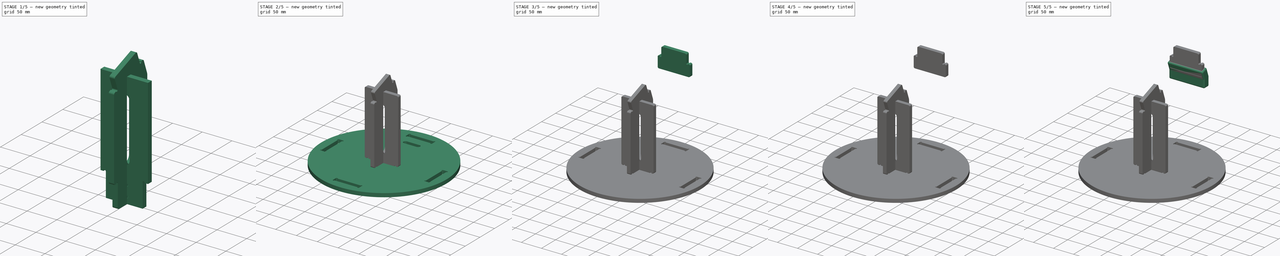
[diagram: build sequence overview — one tinted view per stage of 5, left to right]
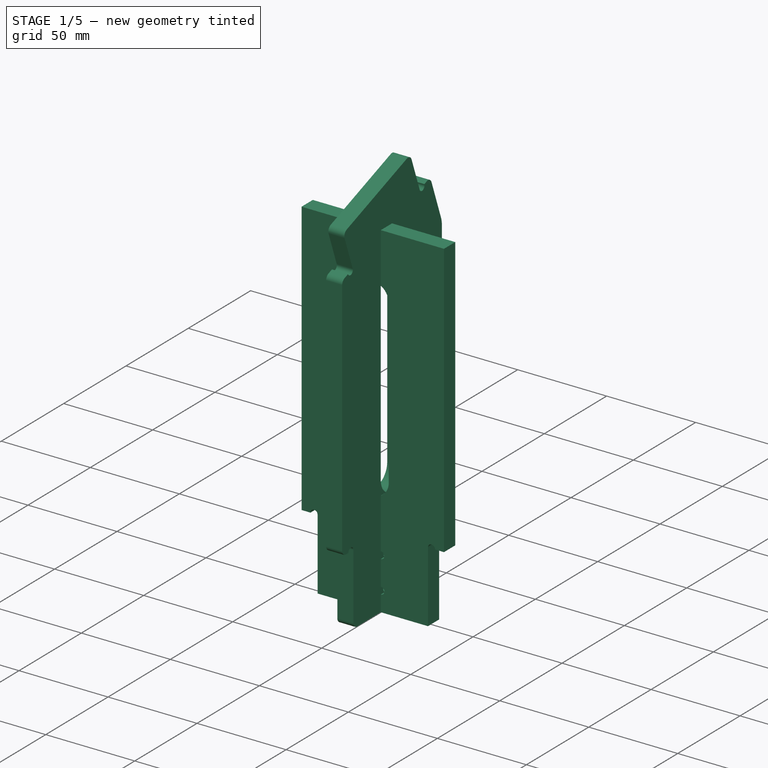
[diagram: stage 1 of 5 — iso view after this stage's code; geometry added in this stage tinted green]
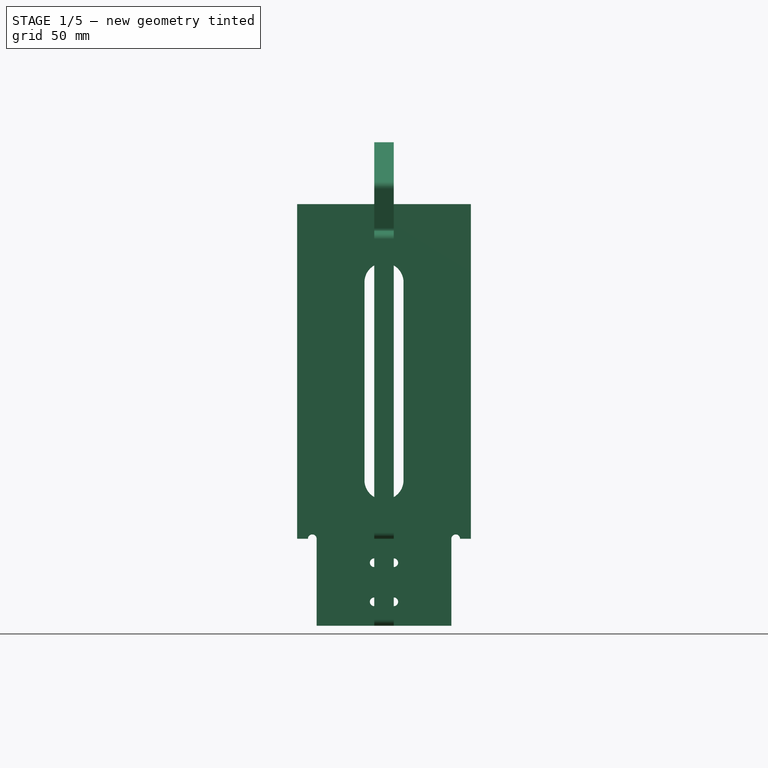
[diagram: stage 1 of 5 — front view after this stage's code; geometry added in this stage tinted green]
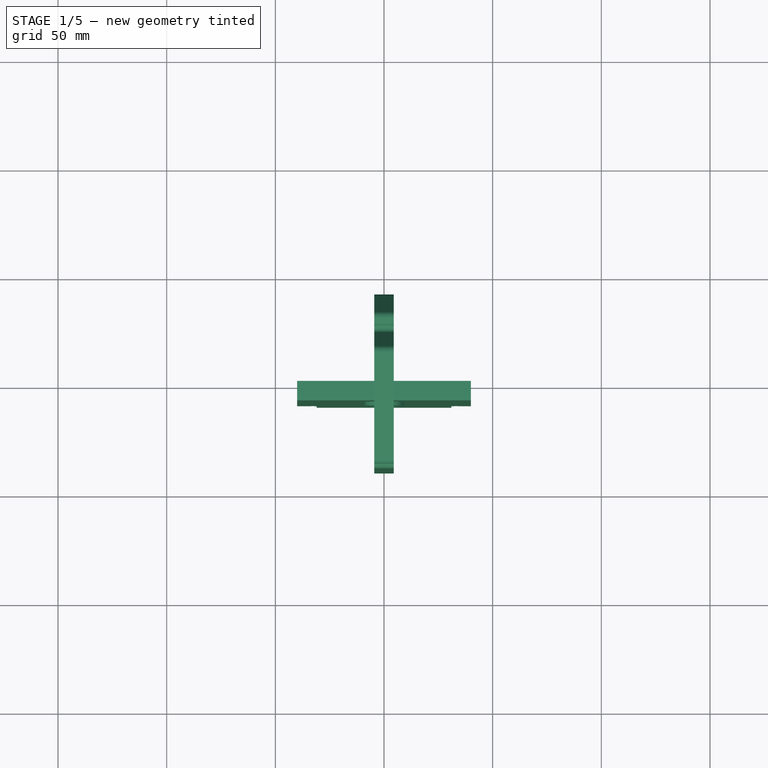
[diagram: stage 1 of 5 — top view after this stage's code; geometry added in this stage tinted green]
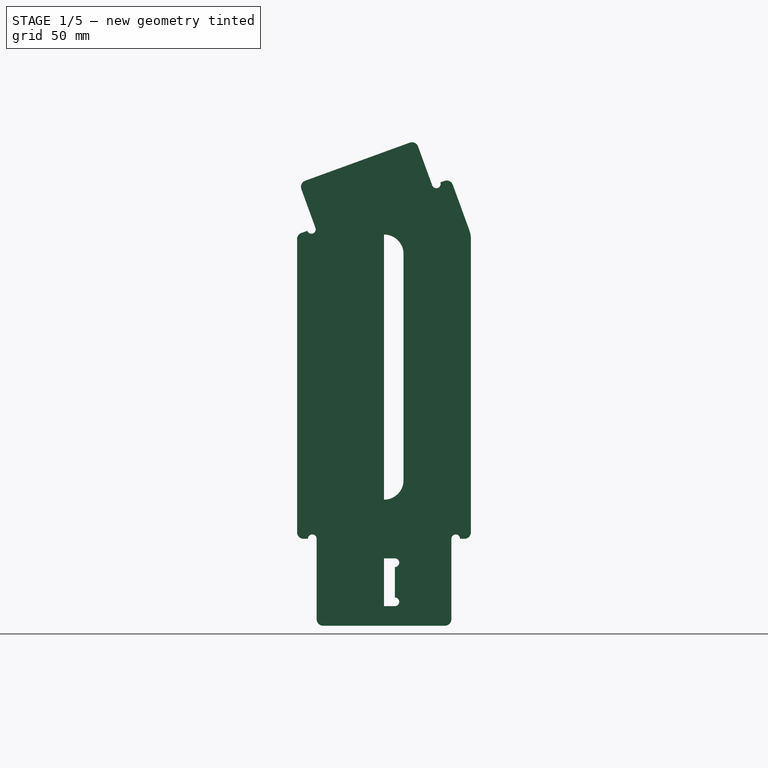
[diagram: stage 1 of 5 — right view after this stage's code; geometry added in this stage tinted green]
FCSTD DOCUMENT  (FreeCAD 0.19R22670 (Git))
Label: shape_final_FAB-02
License: All rights reserved
LicenseURL: http://en.wikipedia.org/wiki/All_rights_reserved
objects: Part::Feature×35, Sketcher::SketchObject×12, PartDesign::Body×12, TechDraw::DrawViewPart×11, PartDesign::Pad×8, PartDesign::Fillet×7, App::LinkGroup×7, PartDesign::FeatureBase×4, PartDesign::Pocket×2, Spreadsheet::Sheet×1, TechDraw::DrawSVGTemplate×1, TechDraw::DrawPage×1
note: 97 computed .brp shape members not serialized (recipe doc carries the construction recipe); baked Part::Feature solids carry a one-line shape summary decoded from their .brp

FEATURE [PartDesign::Body] Body  label="base"
  Group = -> [Sketch,Pad]
  Origin = -> Origin
  Tip = -> Pad
FEATURE [Sketcher::SketchObject] Sketch001
  MapMode = 5
  Placement = pos=(0,0,0) rot=(0.57735,0.57735,0.57735;2.0944rad)
  Support = -> [YZ_Plane001]
  expr: Constraints[40] = Spreadsheet.structure_height
  expr: Constraints[7] = Spreadsheet.structure_foot_height
  expr: Constraints[14] = Spreadsheet.board_thickness
  expr: Constraints[41] = Spreadsheet.structure_pad_width
  expr: Constraints[9] = Spreadsheet.structure_pad_width
  expr: Constraints[17] = Spreadsheet.board_thickness + Spreadsheet.margin
  expr: Constraints[30] = Spreadsheet.board_thickness * 2
  expr: Constraints[94] = Spreadsheet.mill_dia
  expr: Constraints[127] = Spreadsheet.structure_head_height
  expr: Constraints[18] = Spreadsheet.lock_height
  expr: Constraints[79] = Spreadsheet.mill_dia
  expr: Constraints[115] = Spreadsheet.mill_dia
  expr: Constraints[58] = Spreadsheet.board_thickness * 3
  expr: Constraints[63] = Spreadsheet.mill_dia
  expr: Constraints[87] = Spreadsheet.mill_dia
  expr: Constraints[71] = Spreadsheet.mill_dia
  expr: Constraints[8] = Spreadsheet.structure_inner_width
  expr: Constraints[48] = Spreadsheet.angle
  sketch-geometry (46):
    g0: LineSegment StartX=-31 StartY=-31 StartZ=0 EndX=31 EndY=-31 EndZ=0
    g1: LineSegment StartX=31 StartY=-31 StartZ=0 EndX=31 EndY=9 EndZ=0
    g2: LineSegment [constr] StartX=31 StartY=9 StartZ=0 EndX=40 EndY=9 EndZ=0
    g3: LineSegment [constr] StartX=-40 StartY=9 StartZ=0 EndX=-31 EndY=9 EndZ=0
    g4: LineSegment StartX=-31 StartY=9 StartZ=0 EndX=-31 EndY=-31 EndZ=0
    g5: LineSegment [constr] StartX=-40 StartY=9 StartZ=0 EndX=-40 EndY=0 EndZ=0
    g6: LineSegment StartX=-5 StartY=0 StartZ=0 EndX=5 EndY=0 EndZ=0
    g7: LineSegment [constr] StartX=5 StartY=0 StartZ=0 EndX=5 EndY=-22 EndZ=0
    g8: LineSegment StartX=5 StartY=-22 StartZ=0 EndX=-5 EndY=-22 EndZ=0
    g9: LineSegment [constr] StartX=-5 StartY=-22 StartZ=0 EndX=-5 EndY=0 EndZ=0
    g10: ArcOfCircle CenterX=0 CenterY=140 CenterZ=0 NormalX=0 NormalY=0 NormalZ=1 AngleXU=0 Radius=9 StartAngle=1.1e-15 EndAngle=3.14159
    g11: ArcOfCircle CenterX=-6e-16 CenterY=36 CenterZ=0 NormalX=0 NormalY=0 NormalZ=1 AngleXU=0 Radius=9 StartAngle=3.14159 EndAngle=6.28319
    g12: LineSegment StartX=-9 StartY=140 StartZ=0 EndX=-9 EndY=36 EndZ=0
    g13: LineSegment StartX=9 StartY=140 StartZ=0 EndX=9 EndY=36 EndZ=0
    g14: LineSegment [constr] StartX=-9 StartY=87.3818 StartZ=0 EndX=9 EndY=87.3818 EndZ=0
    g15: LineSegment StartX=40 StartY=9 StartZ=0 EndX=40 EndY=149 EndZ=0
    g16: LineSegment StartX=40 StartY=149 StartZ=0 EndX=30.6418 EndY=174.712 EndZ=0
    g17: LineSegment [constr] StartX=30.6418 StartY=174.712 StartZ=0 EndX=22.1845 EndY=171.633 EndZ=0
    g18: LineSegment StartX=22.1845 StartY=171.633 StartZ=0 EndX=14.6601 EndY=192.307 EndZ=0
    g19: LineSegment StartX=14.6601 StartY=192.307 StartZ=0 EndX=-39.0672 EndY=172.751 EndZ=0
    g20: LineSegment StartX=-39.0672 StartY=172.751 StartZ=0 EndX=-31.5428 EndY=152.078 EndZ=0
    g21: LineSegment [constr] StartX=-31.5428 StartY=152.078 StartZ=0 EndX=-40 EndY=149 EndZ=0
    g22: LineSegment StartX=-40 StartY=149 StartZ=0 EndX=-40 EndY=9 EndZ=0
    g23: LineSegment [constr] StartX=-40 StartY=149 StartZ=0 EndX=0 EndY=149 EndZ=0
    g24: LineSegment [constr] StartX=0 StartY=0 StartZ=0 EndX=0 EndY=27 EndZ=0
    g25: ArcOfCircle CenterX=-33.4222 CenterY=151.394 CenterZ=0 NormalX=0 NormalY=0 NormalZ=1 AngleXU=0 Radius=2 StartAngle=3.49066 EndAngle=6.63225
    g26: GeomPoint X=-35.3015 Y=150.71 Z=0
    g27: LineSegment StartX=-35.3015 StartY=150.71 StartZ=0 EndX=-40 EndY=149 EndZ=0
    g28: ArcOfCircle CenterX=24.0639 CenterY=172.317 CenterZ=0 NormalX=0 NormalY=0 NormalZ=1 AngleXU=0 Radius=2 StartAngle=3.49066 EndAngle=6.63225
    g29: GeomPoint X=25.9433 Y=173.001 Z=0
    g30: LineSegment StartX=25.9433 StartY=173.001 StartZ=0 EndX=30.6418 EndY=174.712 EndZ=0
    g31: ArcOfCircle CenterX=-33 CenterY=9 CenterZ=0 NormalX=0 NormalY=0 NormalZ=1 AngleXU=0 Radius=2 StartAngle=1.1e-15 EndAngle=3.14159
    g32: GeomPoint X=-35 Y=9 Z=0
    g33: LineSegment StartX=-35 StartY=9 StartZ=0 EndX=-40 EndY=9 EndZ=0
    g34: ArcOfCircle CenterX=33 CenterY=9 CenterZ=0 NormalX=0 NormalY=0 NormalZ=1 AngleXU=0 Radius=2 StartAngle=0 EndAngle=3.14159
    g35: GeomPoint X=35 Y=9 Z=0
    g36: LineSegment StartX=35 StartY=9 StartZ=0 EndX=40 EndY=9 EndZ=0
    g37: ArcOfCircle CenterX=5 CenterY=-2 CenterZ=0 NormalX=0 NormalY=0 NormalZ=1 AngleXU=0 Radius=2 StartAngle=4.71239 EndAngle=7.85398
    g38: ArcOfCircle CenterX=-5 CenterY=-2 CenterZ=0 NormalX=0 NormalY=0 NormalZ=1 AngleXU=0 Radius=2 StartAngle=1.5708 EndAngle=4.71239
    g39: ArcOfCircle CenterX=5 CenterY=-20 CenterZ=0 NormalX=0 NormalY=0 NormalZ=1 AngleXU=0 Radius=2 StartAngle=4.71239 EndAngle=7.85398
    g40: GeomPoint X=5 Y=-4 Z=0
    g41: GeomPoint X=5 Y=-18 Z=0
    g42: LineSegment StartX=5 StartY=-4 StartZ=0 EndX=5 EndY=-18 EndZ=0
    g43: ArcOfCircle CenterX=-5 CenterY=-20 CenterZ=0 NormalX=0 NormalY=0 NormalZ=1 AngleXU=0 Radius=2 StartAngle=1.5708 EndAngle=4.71239
    g44: GeomPoint X=-5 Y=-18 Z=0
    g45: LineSegment StartX=-5 StartY=-18 StartZ=0 EndX=-5 EndY=-4 EndZ=0
  constraints (131):
    c: Coincident(g0,g1)
    c: Horizontal(g2)
    c: Horizontal(g3)
    c: Coincident(g4,g0)
    c: Vertical(g4)
    c: Vertical(g1)
    c: Equal(g3,g2)
    c: DistanceY(g4,g4) = 40
    c: DistanceX(g0,g0) = 62
    c: DistanceX(g3,g4) = 9
    c: Equal(g3,g2)
    c: Symmetric(g0,g0,g-2)
    c: PointOnObject(g5,g-1)
    c: Vertical(g5)
    c: DistanceY(g5,g5) = 9
    c: Vertical(g7)
    c: Vertical(g9)
    c: DistanceX(g9,g7) = 10
    c: DistanceY(g9,g9) = 22
    c: PointOnObject(g9,g-1)
    c: Tangent(g10,g13)
    c: Tangent(g10,g12)
    c: Tangent(g12,g11)
    c: Tangent(g13,g11)
    c: Vertical(g12)
    c: Equal(g10,g11)
    c: PointOnObject(g10,g-2)
    c: PointOnObject(g14,g12)
    c: PointOnObject(g14,g13)
    c: Horizontal(g14)
    c: DistanceX(g14,g14) = 18
    c: Coincident(g2,g15)
    c: Vertical(g15)
    c: Coincident(g15,g16)
    c: Coincident(g16,g17)
    c: Coincident(g18,g19)
    c: Coincident(g19,g20)
    c: Coincident(g21,g22)
    c: Coincident(g22,g3)
    c: Vertical(g22)
    c: DistanceY(g22,g22) = 140
    c: Distance(g21) = 9
    c: Perpendicular(g20,g21)
    c: Equal(g17,g21)
    c: Perpendicular(g17,g18)
    c: Perpendicular(g16,g17)
    c: Perpendicular(g18,g19)
    c: Perpendicular(g19,g20)
    c: Angle(g16,g15) = 2.79253
    c: Equal(g20,g18)
    c: Equal(g4,g1)
    c: Coincident(g3,g5)
    c: Equal(g22,g15)
    c: Coincident(g23,g21)
    c: PointOnObject(g23,g-2)
    c: Horizontal(g23)
    c: Coincident(g24,g-1)
    c: PointOnObject(g24,g-2)
    c: DistanceY(g24,g24) = 27
    c: PointOnObject(g24,g11)
    c: PointOnObject(g23,g10)
    c: Equal(g21,g17)
    c: PointOnObject(g25,g21)
    c: Diameter(g25) = 4
    c: PointOnObject(g26,g25)
    c: PointOnObject(g26,g21)
    c: PointOnObject(g25,g21)
    c: Coincident(g25,g20)
    c: Coincident(g27,g25)
    c: Coincident(g27,g22)
    c: PointOnObject(g28,g17)
    c: Diameter(g28) = 4
    c: PointOnObject(g29,g28)
    c: PointOnObject(g29,g17)
    c: Coincident(g28,g18)
    c: PointOnObject(g28,g17)
    c: Coincident(g30,g28)
    c: Coincident(g30,g16)
    c: PointOnObject(g31,g3)
    c: Diameter(g31) = 4
    c: PointOnObject(g32,g31)
    c: PointOnObject(g32,g3)
    c: Coincident(g31,g3)
    c: PointOnObject(g31,g3)
    c: Coincident(g33,g31)
    c: Coincident(g33,g22)
    c: PointOnObject(g34,g2)
    c: Diameter(g34) = 4
    c: PointOnObject(g35,g34)
    c: PointOnObject(g35,g2)
    c: PointOnObject(g34,g2)
    c: Coincident(g34,g1)
    c: Coincident(g36,g34)
    c: Coincident(g36,g15)
    c: Diameter(g37) = 4
    c: Equal(g38,g37)
    c: PointOnObject(g37,g7)
    c: PointOnObject(g40,g37)
    c: PointOnObject(g40,g7)
    c: PointOnObject(g37,g7)
    c: Coincident(g37,g6)
    c: PointOnObject(g39,g7)
    c: PointOnObject(g41,g39)
    c: PointOnObject(g41,g7)
    c: Coincident(g39,g7)
    c: PointOnObject(g39,g7)
    c: Coincident(g42,g37)
    c: Coincident(g42,g39)
    c: PointOnObject(g38,g9)
    c: Coincident(g6,g7)
    c: PointOnObject(g-1,g6)
    c: Coincident(g8,g39)
    c: Coincident(g38,g6)
    c: PointOnObject(g38,g9)
    c: PointOnObject(g43,g9)
    c: Diameter(g43) = 4
    c: PointOnObject(g44,g43)
    c: PointOnObject(g44,g9)
    c: PointOnObject(g43,g9)
    c: Coincident(g43,g8)
    c: Coincident(g45,g43)
    c: Coincident(g45,g38)
    c: Symmetric(g8,g8,g-2)
    c: Coincident(g8,g9)
    c: Coincident(g4,g31)
    c: Coincident(g2,g1)
    c: Equal(g39,g43)
    c: Distance(g20) = 22
    c: Coincident(g21,g20)
    c: Coincident(g17,g18)
    c: Coincident(g6,g9)
FEATURE [PartDesign::Pad] Pad001
  Direction = (1,1,1)
  Length = 9
  Length2 = 100
  Midplane = true
  Placement = pos=(0,0,0) rot=(0.57735,0.57735,0.57735;2.0944rad)
  Profile = -> Sketch001
  Type = 0
  expr: Length = Spreadsheet.board_thickness
FEATURE [PartDesign::Body] Body011  label="connector"
  Group = -> [Sketch007,Pad008,Sketch008,Sketch009,Pocket,Sketch010,Sketch011,Pocket001,Fillet006]
  Origin = -> Origin011
  Placement = pos=(0,-6,-3) rot=(0,0,1;0rad)
  Tip = -> Fillet006
FEATURE [Part::Feature] path10
  shape: bbox 78.57 x 0.01524 x 2e-07 mm, 0 faces, 0 solids (baked)
FEATURE [Part::Feature] path12
  shape: bbox 7.134 x 7.136 x 2e-07 mm, 0 faces, 0 solids (baked)
FEATURE [Part::Feature] path14
  shape: bbox 2e-07 x 67.44 x 2e-07 mm, 0 faces, 0 solids (baked)
FEATURE [Part::Feature] path16
  shape: bbox 0.127 x 67.41 x 2e-07 mm, 0 faces, 0 solids (baked)
FEATURE [Part::Feature] path18
  shape: bbox 78.84 x 0.0254 x 2e-07 mm, 0 faces, 0 solids (baked)
FEATURE [Part::Feature] path20
  shape: bbox 7 x 7 x 2e-07 mm, 0 faces, 0 solids (baked)
FEATURE [Part::Feature] path22
  shape: bbox 7.012 x 7.012 x 2e-07 mm, 0 faces, 0 solids (baked)
FEATURE [Part::Feature] path24
  shape: bbox 7 x 7 x 2e-07 mm, 0 faces, 0 solids (baked)
FEATURE [Part::Feature] circle422
  Placement = pos=(86950,-22250,0) rot=(0,0,1;0rad)
  shape: bbox 3.754 x 4.105 x 2e-07 mm, 0 faces, 0 solids (baked)
FEATURE [Part::Feature] circle428
  Placement = pos=(79050,-22250,0) rot=(0,0,1;0rad)
  shape: bbox 3.754 x 4.105 x 2e-07 mm, 0 faces, 0 solids (baked)
FEATURE [Part::Feature] circle434
  Placement = pos=(54500,-50300,0) rot=(0,0,1;0rad)
  shape: bbox 3.754 x 4.105 x 2e-07 mm, 0 faces, 0 solids (baked)
FEATURE [Part::Feature] circle440
  Placement = pos=(62400,-50300,0) rot=(0,0,1;0rad)
  shape: bbox 3.754 x 4.105 x 2e-07 mm, 0 faces, 0 solids (baked)
FEATURE [Part::Feature] circle446
  Placement = pos=(86950,-30150,0) rot=(0,0,1;0rad)
  shape: bbox 3.754 x 4.105 x 2e-07 mm, 0 faces, 0 solids (baked)
FEATURE [Part::Feature] circle452
  Placement = pos=(54500,-40050,0) rot=(0,0,1;0rad)
  shape: bbox 3.754 x 4.105 x 2e-07 mm, 0 faces, 0 solids (baked)
FEATURE [Part::Feature] circle458
  Placement = pos=(86950,-40050,0) rot=(0,0,1;0rad)
  shape: bbox 3.754 x 4.105 x 2e-07 mm, 0 faces, 0 solids (baked)
FEATURE [Part::Feature] circle870
  Placement = pos=(86950,-22250,0) rot=(0,0,1;0rad)
  shape: bbox 3.533 x 3.863 x 2e-07 mm, 0 faces, 0 solids (baked)
FEATURE [Part::Feature] circle876
  Placement = pos=(79050,-22250,0) rot=(0,0,1;0rad)
  shape: bbox 3.533 x 3.863 x 2e-07 mm, 0 faces, 0 solids (baked)
FEATURE [Part::Feature] circle882
  Placement = pos=(54500,-50300,0) rot=(0,0,1;0rad)
  shape: bbox 3.533 x 3.863 x 2e-07 mm, 0 faces, 0 solids (baked)
FEATURE [Part::Feature] circle888
  Placement = pos=(62400,-50300,0) rot=(0,0,1;0rad)
  shape: bbox 3.533 x 3.863 x 2e-07 mm, 0 faces, 0 solids (baked)
FEATURE [Part::Feature] circle894
  Placement = pos=(86950,-30150,0) rot=(0,0,1;0rad)
  shape: bbox 3.533 x 3.863 x 2e-07 mm, 0 faces, 0 solids (baked)
FEATURE [Part::Feature] circle900
  Placement = pos=(54500,-40050,0) rot=(0,0,1;0rad)
  shape: bbox 3.533 x 3.863 x 2e-07 mm, 0 faces, 0 solids (baked)
FEATURE [Part::Feature] circle906
  Placement = pos=(86950,-40050,0) rot=(0,0,1;0rad)
  shape: bbox 3.533 x 3.863 x 2e-07 mm, 0 faces, 0 solids (baked)
FEATURE [App::LinkGroup] LinkGroup004  label="board-high"
  ElementList = -> [path10,path12,path14,path16,path18,path20,path22,path24,circle422,circle428,circle434,circle440,circle446,circle452,circle458,circle870,circle876,circle882,circle888,circle894,circle900,circle906]
  LinkMode = 0
  Placement = pos=(-55.5,-166.789,9) rot=(0,0,1;1.5708rad)
FEATURE [Part::Feature] path10001
  shape: bbox 2.494 x 0.04318 x 2e-07 mm, 0 faces, 0 solids (baked)
FEATURE [Part::Feature] path12001
  shape: bbox 36.74 x 0.04572 x 2e-07 mm, 0 faces, 0 solids (baked)
FEATURE [Part::Feature] path14001
  shape: bbox 2e-07 x 45.09 x 2e-07 mm, 0 faces, 0 solids (baked)
FEATURE [Part::Feature] path16001
  shape: bbox 34.25 x 0.04318 x 2e-07 mm, 0 faces, 0 solids (baked)
FEATURE [Part::Feature] path18001
  shape: bbox 2e-07 x 45.04 x 2e-07 mm, 0 faces, 0 solids (baked)
FEATURE [Part::Feature] path20001
  shape: bbox 7.03 x 7.03 x 2e-07 mm, 0 faces, 0 solids (baked)
FEATURE [Part::Feature] path22001
  shape: bbox 7.03 x 7.03 x 2e-07 mm, 0 faces, 0 solids (baked)
FEATURE [Part::Feature] path24001
  shape: bbox 7.03 x 7.03 x 2e-07 mm, 0 faces, 0 solids (baked)
FEATURE [Part::Feature] path26
  shape: bbox 7.03 x 7.03 x 2e-07 mm, 0 faces, 0 solids (baked)
FEATURE [Part::Feature] circle354
  Placement = pos=(66748,-43742,0) rot=(0,0,1;0rad)
  shape: bbox 3.754 x 4.105 x 2e-07 mm, 0 faces, 0 solids (baked)
FEATURE [Part::Feature] circle360
  Placement = pos=(50756,-24494,0) rot=(0,0,1;0rad)
  shape: bbox 3.754 x 4.105 x 2e-07 mm, 0 faces, 0 solids (baked)
FEATURE [Part::Feature] circle366
  Placement = pos=(54744,-24488,0) rot=(0,0,1;0rad)
  shape: bbox 3.754 x 4.105 x 2e-07 mm, 0 faces, 0 solids (baked)
FEATURE [Part::Feature] circle372
  Placement = pos=(66742,-39746,0) rot=(0,0,1;0rad)
  shape: bbox 3.754 x 4.105 x 2e-07 mm, 0 faces, 0 solids (baked)
FEATURE [App::LinkGroup] LinkGroup005  label="board-low"
  ElementList = -> [path10001,path12001,path14001,path16001,path18001,path20001,path22001,path24001,path26,circle354,circle360,circle366,circle372]
  LinkMode = 0
  Placement = pos=(118.955,211.514,8.99999) rot=(0,0,-1;1.5708rad)
FEATURE [App::LinkGroup] LinkGroup006  label="boards"
  ElementList = -> [LinkGroup005,LinkGroup004]
  LinkMode = 0
  Placement = pos=(3,-6,0) rot=(0,0,1;0rad)
FEATURE [TechDraw::DrawSVGTemplate] Template
  Height = 594
  Orientation = 1
  Width = 841
FEATURE [TechDraw::DrawViewPart] View005
  CoarseView = false
  Direction = (0,-1,0)
  Focus = 100
  HardHidden = false
  IsoCount = 0
  IsoHidden = false
  IsoVisible = false
  LockPosition = false
  Perspective = false
  Rotation = 0
  ScaleType = 0
  SeamHidden = false
  SeamVisible = true
  SmoothHidden = false
  SmoothVisible = true
  Source = -> [Body005]
  X = 359.728
  XDirection = (1,0,0)
  Y = 362.624
FEATURE [TechDraw::DrawViewPart] View009
  CoarseView = false
  Direction = (0,1,0)
  Focus = 100
  HardHidden = false
  IsoCount = 0
  IsoHidden = false
  IsoVisible = false
  LockPosition = false
  Perspective = false
  Rotation = 0
  ScaleType = 0
  SeamHidden = false
  SeamVisible = true
  SmoothHidden = false
  SmoothVisible = true
  Source = -> [Fillet005]
  X = 368.674
  XDirection = (-1,0,0)
  Y = 437.829
FEATURE [TechDraw::DrawViewPart] View010
  CoarseView = false
  Direction = (0,0,1)
  Focus = 100
  HardHidden = false
  IsoCount = 0
  IsoHidden = false
  IsoVisible = false
  LockPosition = false
  Perspective = false
  Rotation = 0
  ScaleType = 0
  SeamHidden = false
  SeamVisible = true
  SmoothHidden = false
  SmoothVisible = true
  Source = -> [Pad005]
  X = 500.064
  XDirection = (1,0,0)
  Y = 170.024
FEATURE [TechDraw::DrawViewPart] View
  CoarseView = false
  Direction = (0,0,1)
  Focus = 100
  HardHidden = false
  IsoCount = 0
  IsoHidden = false
  IsoVisible = false
  LockPosition = false
  Perspective = false
  Rotation = 0
  ScaleType = 0
  SeamHidden = false
  SeamVisible = true
  SmoothHidden = false
  SmoothVisible = true
  Source = -> [Body]
  X = 176.868
  XDirection = (1,0,0)
  Y = 171.762
FEATURE [PartDesign::Fillet] Fillet
  Base = -> Pad001 [Edge23,Edge44,Edge47,Edge17,Edge8,Edge5,Edge35,Edge32]
  BaseFeature = -> Pad001
  Placement = pos=(0,0,0) rot=(0.57735,0.57735,0.57735;2.0944rad)
  Radius = 3
  SupportTransform = true
  expr: Radius = Spreadsheet.filet_sm
FEATURE [PartDesign::Body] Body008  label="lock_clone_003"
  BaseFeature = -> Body003
  Group = -> [Clone003]
  Origin = -> Origin008
  Placement = pos=(0,-4,0) rot=(0,0,1;0rad)
  Tip = -> Clone003
FEATURE [TechDraw::DrawViewPart] View002
  CoarseView = false
  Direction = (0,-1,0)
  Focus = 100
  HardHidden = false
  IsoCount = 0
  IsoHidden = false
  IsoVisible = false
  LockPosition = false
  Perspective = false
  Rotation = 0
  ScaleType = 0
  SeamHidden = false
  SeamVisible = true
  SmoothHidden = false
  SmoothVisible = true
  Source = -> [Body002]
  X = 442.443
  XDirection = (1,0,0)
  Y = 467.881
FEATURE [TechDraw::DrawViewPart] View004
  CoarseView = false
  Direction = (0,-1,0)
  Focus = 100
  HardHidden = false
  IsoCount = 0
  IsoHidden = false
  IsoVisible = false
  LockPosition = false
  Perspective = false
  Rotation = 0
  ScaleType = 0
  SeamHidden = false
  SeamVisible = true
  SmoothHidden = false
  SmoothVisible = true
  Source = -> [Body003]
  X = 443.56
  XDirection = (1,0,0)
  Y = 434.219
FEATURE [TechDraw::DrawViewPart] View006
  CoarseView = false
  Direction = (0,-1,0)
  Focus = 100
  HardHidden = false
  IsoCount = 0
  IsoHidden = false
  IsoVisible = false
  LockPosition = false
  Perspective = false
  Rotation = 0
  ScaleType = 0
  SeamHidden = false
  SeamVisible = true
  SmoothHidden = false
  SmoothVisible = true
  Source = -> [Clone002]
  X = 445.431
  XDirection = (1,0,0)
  Y = 396.191
FEATURE [TechDraw::DrawViewPart] View007
  CoarseView = false
  Direction = (1,0,0)
  Focus = 100
  HardHidden = false
  IsoCount = 0
  IsoHidden = false
  IsoVisible = false
  LockPosition = false
  Perspective = false
  Rotation = 0
  ScaleType = 0
  SeamHidden = false
  SeamVisible = true
  SmoothHidden = false
  SmoothVisible = true
  Source = -> [Body008]
  X = 447.697
  XDirection = (0,1,0)
  Y = 354.025
FEATURE [Sketcher::SketchObject] Sketch012
  MapMode = 5
  Placement = pos=(0,0,0) rot=(1,0,0;1.5708rad)
  Support = -> [XZ_Plane007]
  expr: Constraints[16] = Spreadsheet.structure_pad_width
  expr: Constraints[52] = Spreadsheet.mill_dia
  expr: Constraints[111] = Spreadsheet.board_thickness * 3
  expr: Constraints[14] = Spreadsheet.structure_height + 14mm
  expr: Constraints[22] = Spreadsheet.board_thickness
  expr: Constraints[27] = Spreadsheet.mill_dia
  expr: Constraints[23] = Spreadsheet.structure_inner_width
  expr: Constraints[24] = Spreadsheet.structure_foot_height
  expr: Constraints[53] = Spreadsheet.board_thickness
  expr: Constraints[54] = Spreadsheet.lock_height
  expr: Constraints[65] = Spreadsheet.mill_dia
  expr: Constraints[102] = Spreadsheet.board_thickness * 3
  expr: Constraints[106] = Spreadsheet.board_thickness * 2
  sketch-geometry (44):
    g0: LineSegment [constr] StartX=-31 StartY=9 StartZ=0 EndX=-40 EndY=9 EndZ=0
    g1: LineSegment StartX=-40 StartY=9 StartZ=0 EndX=-40 EndY=163 EndZ=0
    g2: LineSegment StartX=-40 StartY=163 StartZ=0 EndX=40 EndY=163 EndZ=0
    g3: LineSegment StartX=40 StartY=163 StartZ=0 EndX=40 EndY=9 EndZ=0
    g4: LineSegment [constr] StartX=40 StartY=9 StartZ=0 EndX=31 EndY=9 EndZ=0
    g5: LineSegment StartX=31 StartY=9 StartZ=0 EndX=31 EndY=-31 EndZ=0
    g6: LineSegment StartX=31 StartY=-31 StartZ=0 EndX=-31 EndY=-31 EndZ=0
    g7: LineSegment StartX=-31 StartY=-31 StartZ=0 EndX=-31 EndY=9 EndZ=0
    g8: LineSegment [constr] StartX=-40 StartY=9 StartZ=0 EndX=-40 EndY=0 EndZ=0
    g9: Circle [constr] CenterX=-33 CenterY=9 CenterZ=0 NormalX=0 NormalY=0 NormalZ=1 AngleXU=0 Radius=2
    g10: GeomPoint X=-35 Y=9 Z=0
    g11: ArcOfCircle CenterX=-33 CenterY=9 CenterZ=0 NormalX=0 NormalY=0 NormalZ=1 AngleXU=0 Radius=2 StartAngle=-1.8e-15 EndAngle=3.14159
    g12: LineSegment StartX=-40 StartY=9 StartZ=0 EndX=-35 EndY=9 EndZ=0
    g13: Circle [constr] CenterX=33 CenterY=9 CenterZ=0 NormalX=0 NormalY=0 NormalZ=1 AngleXU=0 Radius=2
    g14: GeomPoint X=35 Y=9 Z=0
    g15: ArcOfCircle CenterX=33 CenterY=9 CenterZ=0 NormalX=0 NormalY=0 NormalZ=1 AngleXU=0 Radius=2 StartAngle=-2.7e-15 EndAngle=3.14159
    g16: LineSegment StartX=35 StartY=9 StartZ=0 EndX=40 EndY=9 EndZ=0
    g17: LineSegment [constr] StartX=-4.5 StartY=0 StartZ=0 EndX=4.5 EndY=0 EndZ=0
    g18: LineSegment [constr] StartX=4.5 StartY=0 StartZ=0 EndX=4.5 EndY=-22 EndZ=0
    g19: LineSegment [constr] StartX=4.5 StartY=-22 StartZ=0 EndX=-4.5 EndY=-22 EndZ=0
    g20: LineSegment [constr] StartX=-4.5 StartY=-22 StartZ=0 EndX=-4.5 EndY=0 EndZ=0
    g21: Circle [constr] CenterX=4.5 CenterY=-2 CenterZ=0 NormalX=0 NormalY=0 NormalZ=1 AngleXU=0 Radius=2
    g22: GeomPoint X=4.5 Y=-4 Z=0
    g23: Circle [constr] CenterX=4.5 CenterY=-20 CenterZ=0 NormalX=0 NormalY=0 NormalZ=1 AngleXU=0 Radius=2
    g24: Circle [constr] CenterX=-4.5 CenterY=-20 CenterZ=0 NormalX=0 NormalY=0 NormalZ=1 AngleXU=0 Radius=2
    g25: Circle [constr] CenterX=-4.5 CenterY=-2 CenterZ=0 NormalX=0 NormalY=0 NormalZ=1 AngleXU=0 Radius=2
    g26: GeomPoint X=-4.5 Y=-4 Z=0
    g27: GeomPoint X=-4.5 Y=-18 Z=0
    g28: GeomPoint X=4.5 Y=-18 Z=0
    g29: ArcOfCircle CenterX=-4.5 CenterY=-2 CenterZ=0 NormalX=0 NormalY=0 NormalZ=1 AngleXU=0 Radius=2 StartAngle=1.5708 EndAngle=4.71239
    g30: ArcOfCircle CenterX=4.5 CenterY=-2 CenterZ=0 NormalX=0 NormalY=0 NormalZ=1 AngleXU=0 Radius=2 StartAngle=4.71239 EndAngle=7.85398
    g31: ArcOfCircle CenterX=4.5 CenterY=-20 CenterZ=0 NormalX=0 NormalY=0 NormalZ=1 AngleXU=0 Radius=2 StartAngle=4.71239 EndAngle=7.85398
    g32: ArcOfCircle CenterX=-4.5 CenterY=-20 CenterZ=0 NormalX=0 NormalY=0 NormalZ=1 AngleXU=0 Radius=2 StartAngle=1.5708 EndAngle=4.71239
    g33: LineSegment StartX=-4.5 StartY=0 StartZ=0 EndX=4.5 EndY=0 EndZ=0
    g34: LineSegment StartX=4.5 StartY=-4 StartZ=0 EndX=4.5 EndY=-18 EndZ=0
    g35: LineSegment StartX=4.5 StartY=-22 StartZ=0 EndX=-4.5 EndY=-22 EndZ=0
    g36: LineSegment StartX=-4.5 StartY=-18 StartZ=0 EndX=-4.5 EndY=-4 EndZ=0
    g37: ArcOfCircle CenterX=0 CenterY=127 CenterZ=0 NormalX=0 NormalY=0 NormalZ=1 AngleXU=0 Radius=9 StartAngle=1.49e-14 EndAngle=3.14159
    g38: ArcOfCircle CenterX=6e-16 CenterY=36 CenterZ=0 NormalX=0 NormalY=0 NormalZ=1 AngleXU=0 Radius=9 StartAngle=3.14159 EndAngle=6.28319
    g39: LineSegment StartX=-9 StartY=127 StartZ=0 EndX=-9 EndY=36 EndZ=0
    g40: LineSegment StartX=9 StartY=127 StartZ=0 EndX=9 EndY=36 EndZ=0
    g41: LineSegment [constr] StartX=0 StartY=27 StartZ=0 EndX=0 EndY=0 EndZ=0
    g42: LineSegment [constr] StartX=-9 StartY=108.538 StartZ=0 EndX=9 EndY=108.538 EndZ=0
    g43: LineSegment [constr] StartX=0 StartY=136 StartZ=0 EndX=0 EndY=163 EndZ=0
  constraints (112):
    c: Horizontal(g0)
    c: Coincident(g0,g1)
    c: Vertical(g1)
    c: Coincident(g1,g2)
    c: Coincident(g2,g3)
    c: Vertical(g3)
    c: Coincident(g3,g4)
    c: Horizontal(g4)
    c: Coincident(g4,g5)
    c: Vertical(g5)
    c: Coincident(g5,g6)
    c: Coincident(g6,g7)
    c: Coincident(g7,g0)
    c: Vertical(g7)
    c: DistanceY(g1,g1) = 154
    c: Equal(g1,g3)
    c: DistanceX(g0,g0) = 9
    c: Equal(g0,g4)
    c: Symmetric(g1,g2,g-2)
    c: Coincident(g8,g1)
    c: PointOnObject(g8,g-1)
    c: Vertical(g8)
    c: DistanceY(g8,g8) = 9
    c: DistanceX(g6,g6) = 62
    c: DistanceY(g7,g7) = 40
    c: Equal(g7,g5)
    c: PointOnObject(g9,g0)
    c: Diameter(g9) = 4
    c: PointOnObject(g7,g9)
    c: Coincident(g11,g9)
    c: Coincident(g11,g10)
    c: Coincident(g11,g7)
    c: Coincident(g12,g1)
    c: Coincident(g12,g10)
    c: Horizontal(g12)
    c: PointOnObject(g13,g4)
    c: PointOnObject(g14,g13)
    c: PointOnObject(g14,g4)
    c: Coincident(g15,g13)
    c: Coincident(g15,g5)
    c: Coincident(g15,g14)
    c: Coincident(g16,g14)
    c: Coincident(g16,g3)
    c: Coincident(g17,g18)
    c: Coincident(g18,g19)
    c: Coincident(g19,g20)
    c: Coincident(g20,g17)
    c: Horizontal(g19)
    c: Vertical(g18)
    c: Vertical(g20)
    c: PointOnObject(g17,g-1)
    c: Symmetric(g17,g17,g-2)
    c: Diameter(g13) = 4
    c: DistanceX(g19,g19) = 9
    c: DistanceY(g20,g20) = 22
    c: PointOnObject(g21,g18)
    c: PointOnObject(g17,g21)
    c: PointOnObject(g22,g21)
    c: PointOnObject(g22,g18)
    c: PointOnObject(g23,g18)
    c: PointOnObject(g24,g20)
    c: PointOnObject(g25,g20)
    c: PointOnObject(g17,g25)
    c: PointOnObject(g18,g23)
    c: PointOnObject(g19,g24)
    c: Diameter(g21) = 4
    c: Equal(g21,g25)
    c: Equal(g25,g24)
    c: Equal(g24,g23)
    c: Coincident(g29,g25)
    c: Coincident(g29,g26)
    c: Coincident(g29,g17)
    c: Coincident(g30,g21)
    c: Coincident(g30,g17)
    c: PointOnObject(g30,g18)
    c: Coincident(g31,g23)
    c: Coincident(g31,g28)
    c: Coincident(g31,g18)
    c: Coincident(g32,g24)
    c: Coincident(g32,g19)
    c: Coincident(g32,g27)
    c: Coincident(g33,g29)
    c: Coincident(g33,g30)
    c: Coincident(g34,g22)
    c: Coincident(g34,g28)
    c: Vertical(g34)
    c: Coincident(g35,g31)
    c: Coincident(g35,g32)
    c: Coincident(g36,g27)
    c: Coincident(g36,g26)
    c: Vertical(g36)
    c: Tangent(g37,g40)
    c: Tangent(g37,g39)
    c: Tangent(g39,g38)
    c: Tangent(g40,g38)
    c: Vertical(g39)
    c: Equal(g37,g38)
    c: PointOnObject(g37,g-2)
    c: PointOnObject(g41,g38)
    c: PointOnObject(g41,g33)
    c: Vertical(g41)
    c: PointOnObject(g41,g-2)
    c: DistanceY(g41,g41) = 27
    c: PointOnObject(g42,g39)
    c: PointOnObject(g42,g40)
    c: Horizontal(g42)
    c: DistanceX(g42,g42) = 18
    c: PointOnObject(g43,g37)
    c: PointOnObject(g43,g2)
    c: Vertical(g43)
    c: PointOnObject(g43,g-2)
    c: DistanceY(g43,g43) = 27
FEATURE [PartDesign::Pad] Pad009
  Direction = (1,1,1)
  Length = 9
  Length2 = 100
  Placement = pos=(0,0,0) rot=(1,0,0;1.5708rad)
  Profile = -> Sketch012
  Type = 0
  expr: Length = Spreadsheet.board_thickness
FEATURE [PartDesign::Body] Body007  label="structureback_part_01"
  Group = -> [Sketch012,Pad009,Fillet009]
  Origin = -> Origin007
  Placement = pos=(0,0.5,0) rot=(0,0,1;0rad)
  Tip = -> Fillet009
FEATURE [App::LinkGroup] LinkGroup003  label="leg_back"
  ElementList = -> [Body008,Body007,Origin007,Body010]
  LinkMode = 0
  Placement = pos=(0,129,0) rot=(0,0,1;0rad)
FEATURE [TechDraw::DrawViewPart] View008
  CoarseView = false
  Direction = (0,-1,0)
  Focus = 100
  HardHidden = false
  IsoCount = 0
  IsoHidden = false
  IsoVisible = false
  LockPosition = false
  Perspective = false
  Rotation = 0
  ScaleType = 0
  SeamHidden = false
  SeamVisible = true
  SmoothHidden = false
  SmoothVisible = true
  Source = -> [Body007]
  X = 274.287
  XDirection = (1,0,0)
  Y = 434.824
FEATURE [PartDesign::Fillet] Fillet010
  Base = -> Fillet [Edge91]
  BaseFeature = -> Fillet
  Placement = pos=(0,0,0) rot=(0.57735,0.57735,0.57735;2.0944rad)
  Radius = 12
  SupportTransform = true
  expr: Radius = Spreadsheet.filet_lg
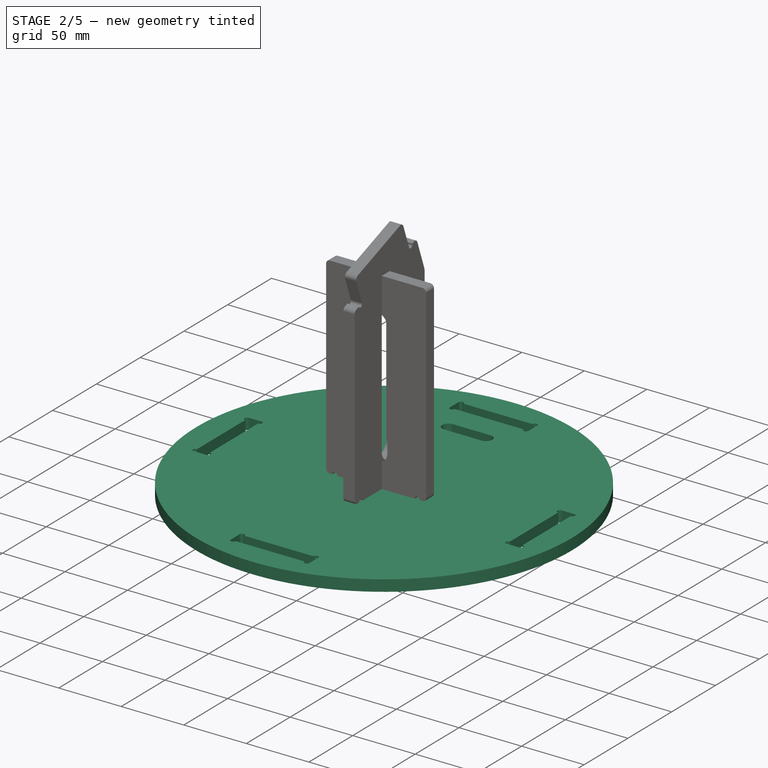
[diagram: stage 2 of 5 — iso view after this stage's code; geometry added in this stage tinted green]
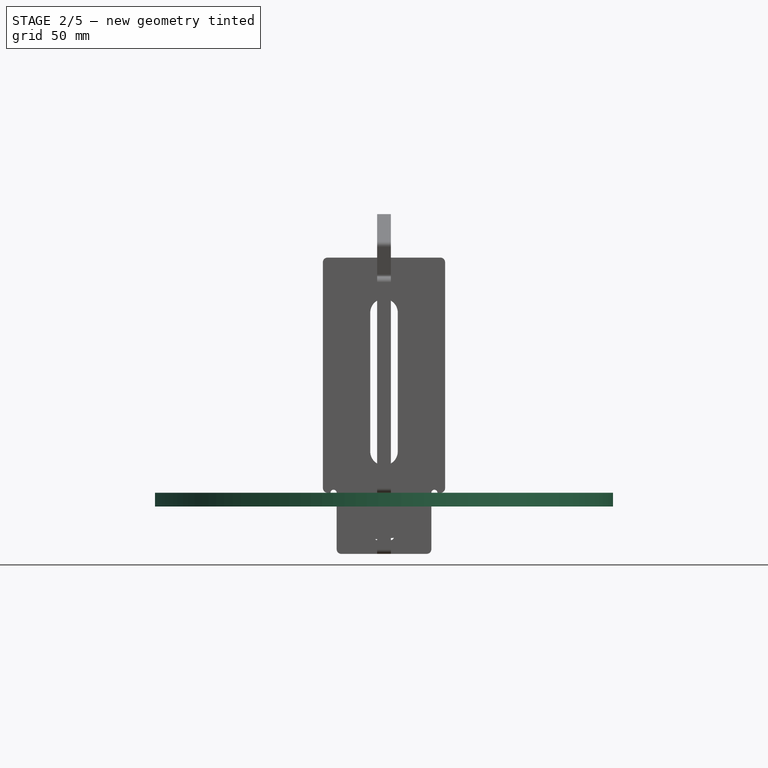
[diagram: stage 2 of 5 — front view after this stage's code; geometry added in this stage tinted green]
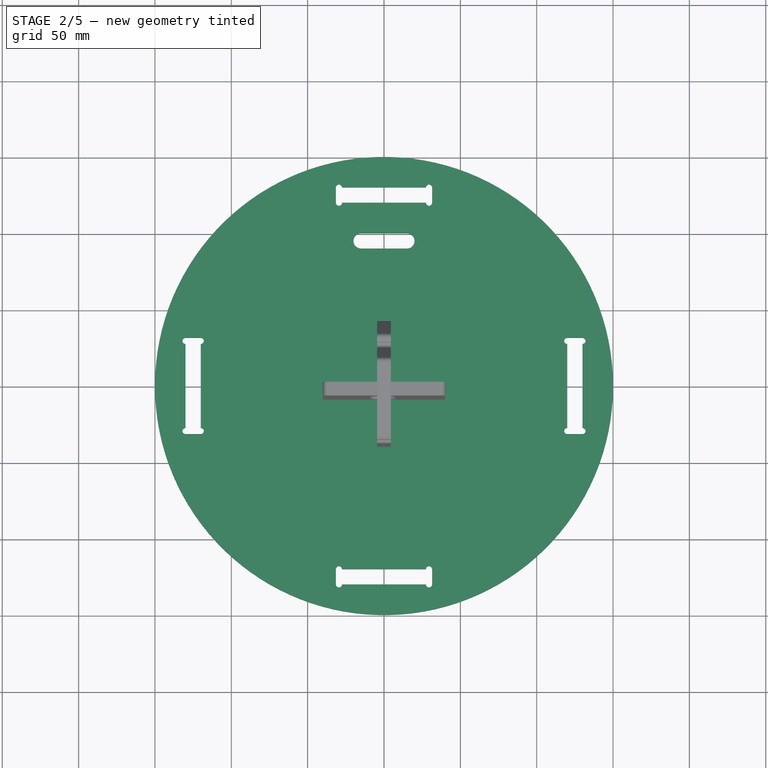
[diagram: stage 2 of 5 — top view after this stage's code; geometry added in this stage tinted green]
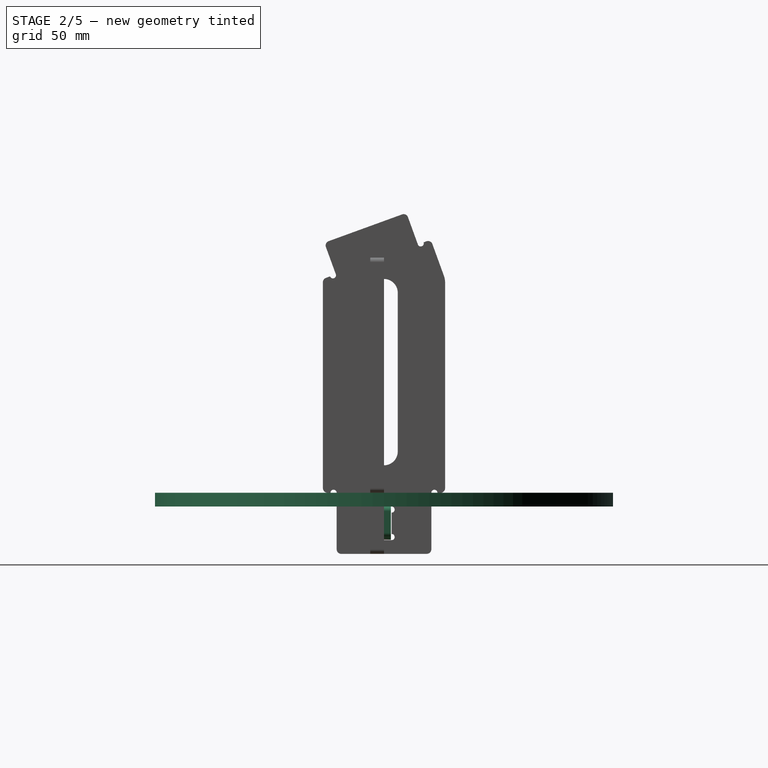
[diagram: stage 2 of 5 — right view after this stage's code; geometry added in this stage tinted green]
FEATURE [Spreadsheet::Sheet] Spreadsheet
  cells = A1=margin; B1(margin)==1mm; A2=board_dia; B2(board_dia)==300mm; A3=board_thickness; B3(board_thickness)==9mm; A4=structure_width; B4(structure_width)==80mm; A5=flex_thickness; B5(flex_thickness)==13mm; A6=flex_perf_dia; B6(flex_perf_dia)==6mm; A7=structure_inner_width; B7(structure_inner_width)==62mm; A8=board_padding; B8(board_padding)==20mm; A9=structure_height; B9(structure_height)==140mm; A10=structure_foot_height; B10(structure_foot_height)==40mm; A11=structure_head_height; B11(structure_head_height)==flex_thickness + board_thickness; A12=structure_pad_width; B12(structure_pad_width)==(structure_width - structure_inner_width) / 2; A13=lock_height; B13(lock_height)==structure_foot_height - board_thickness * 2; A14=angle; B14(angle)==160deg; A15=hole_dia; B15(hole_dia)==6.5mm; A16=filet_sm; B16(filet_sm)==3mm; A17=filet_lg; B17(filet_lg)==12mm; A18=connector_padding; B18(connector_padding)==4mm; A19=connector_side; B19(connector_side)==10mm; A20=board_holes; B20(board_holes)==3.6mm; A22=mill_dia; B22(mill_dia)==4mm
FEATURE [Sketcher::SketchObject] Sketch
  MapMode = 5
  Support = -> [XY_Plane]
  expr: Constraints[79] = Spreadsheet.board_padding
  expr: Constraints[35] = Spreadsheet.board_padding
  expr: Constraints[15] = Spreadsheet.board_padding
  expr: Constraints[74] = 40mm
  expr: Constraints[9] = Spreadsheet.board_thickness + Spreadsheet.margin
  expr: Constraints[8] = Spreadsheet.structure_inner_width + Spreadsheet.margin
  expr: Constraints[156] = Spreadsheet.mill_dia
  expr: Constraints[0] = Spreadsheet.board_dia
  expr: Constraints[84] = Spreadsheet.mill_dia
  expr: Constraints[120] = Spreadsheet.mill_dia
  expr: Constraints[197] = Spreadsheet.mill_dia
  sketch-geometry (92):
    g0: Circle CenterX=0 CenterY=0 CenterZ=0 NormalX=0 NormalY=0 NormalZ=1 AngleXU=0 Radius=150
    g1: LineSegment [constr] StartX=-31.5 StartY=130 StartZ=0 EndX=31.5 EndY=130 EndZ=0
    g2: LineSegment [constr] StartX=31.5 StartY=130 StartZ=0 EndX=31.5 EndY=120 EndZ=0
    g3: LineSegment [constr] StartX=31.5 StartY=120 StartZ=0 EndX=-31.5 EndY=120 EndZ=0
    g4: LineSegment [constr] StartX=-31.5 StartY=120 StartZ=0 EndX=-31.5 EndY=130 EndZ=0
    g5: LineSegment [constr] StartX=0 StartY=150 StartZ=0 EndX=0 EndY=130 EndZ=0
    g6: LineSegment [constr] StartX=120 StartY=31.5 StartZ=0 EndX=130 EndY=31.5 EndZ=0
    g7: LineSegment [constr] StartX=130 StartY=31.5 StartZ=0 EndX=130 EndY=-31.5 EndZ=0
    g8: LineSegment [constr] StartX=130 StartY=-31.5 StartZ=0 EndX=120 EndY=-31.5 EndZ=0
    g9: LineSegment [constr] StartX=120 StartY=-31.5 StartZ=0 EndX=120 EndY=31.5 EndZ=0
    g10: LineSegment [constr] StartX=-120 StartY=31.5 StartZ=0 EndX=-130 EndY=31.5 EndZ=0
    g11: LineSegment [constr] StartX=-130 StartY=31.5 StartZ=0 EndX=-130 EndY=-31.5 EndZ=0
    g12: LineSegment [constr] StartX=-130 StartY=-31.5 StartZ=0 EndX=-120 EndY=-31.5 EndZ=0
    g13: LineSegment [constr] StartX=-120 StartY=-31.5 StartZ=0 EndX=-120 EndY=31.5 EndZ=0
    g14: LineSegment [constr] StartX=150 StartY=0 StartZ=0 EndX=130 EndY=0 EndZ=0
    g15: LineSegment [constr] StartX=-150 StartY=0 StartZ=0 EndX=-130 EndY=0 EndZ=0
    g16: LineSegment [constr] StartX=-31.5 StartY=-120 StartZ=0 EndX=31.5 EndY=-120 EndZ=0
    g17: LineSegment [constr] StartX=31.5 StartY=-120 StartZ=0 EndX=31.5 EndY=-130 EndZ=0
    g18: LineSegment [constr] StartX=31.5 StartY=-130 StartZ=0 EndX=-31.5 EndY=-130 EndZ=0
    g19: LineSegment [constr] StartX=-31.5 StartY=-130 StartZ=0 EndX=-31.5 EndY=-120 EndZ=0
    g20: LineSegment [constr] StartX=0 StartY=-130 StartZ=0 EndX=0 EndY=-150 EndZ=0
    g21: ArcOfCircle CenterX=-15 CenterY=95 CenterZ=0 NormalX=0 NormalY=0 NormalZ=1 AngleXU=0 Radius=5 StartAngle=1.5708 EndAngle=4.71239
    g22: ArcOfCircle CenterX=15 CenterY=95 CenterZ=0 NormalX=0 NormalY=0 NormalZ=1 AngleXU=0 Radius=5 StartAngle=4.71239 EndAngle=7.85398
    g23: LineSegment StartX=-15 StartY=90 StartZ=0 EndX=15 EndY=90 EndZ=0
    g24: LineSegment StartX=-15 StartY=100 StartZ=0 EndX=15 EndY=100 EndZ=0
    g25: LineSegment [constr] StartX=-8.61019 StartY=100 StartZ=0 EndX=-8.61019 EndY=90 EndZ=0
    g26: LineSegment [constr] StartX=-20 StartY=95 StartZ=0 EndX=20 EndY=95 EndZ=0
    g27: LineSegment [constr] StartX=1.80869 StartY=120 StartZ=0 EndX=1.80869 EndY=100 EndZ=0
    g28: Circle [constr] CenterX=29.5 CenterY=130 CenterZ=0 NormalX=0 NormalY=0 NormalZ=1 AngleXU=0 Radius=2
    g29: Circle [constr] CenterX=-29.5 CenterY=130 CenterZ=0 NormalX=0 NormalY=0 NormalZ=1 AngleXU=0 Radius=2
    g30: Circle [constr] CenterX=-29.5 CenterY=120 CenterZ=0 NormalX=0 NormalY=0 NormalZ=1 AngleXU=0 Radius=2
    g31: Circle [constr] CenterX=29.5 CenterY=120 CenterZ=0 NormalX=0 NormalY=0 NormalZ=1 AngleXU=0 Radius=2
    g32: GeomPoint X=-27.5 Y=130 Z=0
    g33: GeomPoint X=-27.5 Y=120 Z=0
    g34: GeomPoint X=27.5 Y=130 Z=0
    g35: GeomPoint X=27.5 Y=120 Z=0
    g36: ArcOfCircle CenterX=-29.5 CenterY=130 CenterZ=0 NormalX=0 NormalY=0 NormalZ=1 AngleXU=0 Radius=2 StartAngle=6.2e-15 EndAngle=3.14159
    g37: ArcOfCircle CenterX=-29.5 CenterY=120 CenterZ=0 NormalX=0 NormalY=0 NormalZ=1 AngleXU=0 Radius=2 StartAngle=3.14159 EndAngle=6.28319
    g38: ArcOfCircle CenterX=29.5 CenterY=130 CenterZ=0 NormalX=0 NormalY=0 NormalZ=1 AngleXU=0 Radius=2 StartAngle=-9e-16 EndAngle=3.14159
    g39: ArcOfCircle CenterX=29.5 CenterY=120 CenterZ=0 NormalX=0 NormalY=0 NormalZ=1 AngleXU=0 Radius=2 StartAngle=3.14159 EndAngle=6.28319
    g40: LineSegment StartX=-27.5 StartY=130 StartZ=0 EndX=27.5 EndY=130 EndZ=0
    g41: LineSegment StartX=31.5 StartY=130 StartZ=0 EndX=31.5 EndY=120 EndZ=0
    g42: LineSegment StartX=27.5 StartY=120 StartZ=0 EndX=-27.5 EndY=120 EndZ=0
    g43: LineSegment StartX=-31.5 StartY=120 StartZ=0 EndX=-31.5 EndY=130 EndZ=0
    g44: Circle [constr] CenterX=130 CenterY=29.5 CenterZ=0 NormalX=0 NormalY=0 NormalZ=1 AngleXU=0 Radius=2
    g45: Circle [constr] CenterX=120 CenterY=29.5 CenterZ=0 NormalX=0 NormalY=0 NormalZ=1 AngleXU=0 Radius=2
    g46: Circle [constr] CenterX=120 CenterY=-29.5 CenterZ=0 NormalX=0 NormalY=0 NormalZ=1 AngleXU=0 Radius=2
    g47: Circle [constr] CenterX=130 CenterY=-29.5 CenterZ=0 NormalX=0 NormalY=0 NormalZ=1 AngleXU=0 Radius=2
    g48: GeomPoint X=120 Y=27.5 Z=0
    g49: GeomPoint X=130 Y=27.5 Z=0
    g50: GeomPoint X=120 Y=-27.5 Z=0
    g51: GeomPoint X=130 Y=-27.5 Z=0
    g52: ArcOfCircle CenterX=120 CenterY=29.5 CenterZ=0 NormalX=0 NormalY=0 NormalZ=1 AngleXU=0 Radius=2 StartAngle=1.5708 EndAngle=4.71239
    g53: ArcOfCircle CenterX=130 CenterY=29.5 CenterZ=0 NormalX=0 NormalY=0 NormalZ=1 AngleXU=0 Radius=2 StartAngle=4.71239 EndAngle=7.85398
    g54: ArcOfCircle CenterX=120 CenterY=-29.5 CenterZ=0 NormalX=0 NormalY=0 NormalZ=1 AngleXU=0 Radius=2 StartAngle=1.5708 EndAngle=4.71239
    g55: ArcOfCircle CenterX=130 CenterY=-29.5 CenterZ=0 NormalX=0 NormalY=0 NormalZ=1 AngleXU=0 Radius=2 StartAngle=4.71239 EndAngle=7.85398
    g56: LineSegment StartX=120 StartY=31.5 StartZ=0 EndX=130 EndY=31.5 EndZ=0
    g57: LineSegment StartX=130 StartY=27.5 StartZ=0 EndX=130 EndY=-27.5 EndZ=0
    g58: LineSegment StartX=130 StartY=-31.5 StartZ=0 EndX=120 EndY=-31.5 EndZ=0
    g59: LineSegment StartX=120 StartY=-27.5 StartZ=0 EndX=120 EndY=27.5 EndZ=0
    g60: Circle [constr] CenterX=-130 CenterY=29.5 CenterZ=0 NormalX=0 NormalY=0 NormalZ=1 AngleXU=0 Radius=2
    g61: Circle [constr] CenterX=-120 CenterY=29.5 CenterZ=0 NormalX=0 NormalY=0 NormalZ=1 AngleXU=0 Radius=2
    g62: Circle [constr] CenterX=-120 CenterY=-29.5 CenterZ=0 NormalX=0 NormalY=0 NormalZ=1 AngleXU=0 Radius=2
    g63: Circle [constr] CenterX=-130 CenterY=-29.5 CenterZ=0 NormalX=0 NormalY=0 NormalZ=1 AngleXU=0 Radius=2
    g64: GeomPoint X=-130 Y=27.5 Z=0
    g65: GeomPoint X=-120 Y=27.5 Z=0
    g66: GeomPoint X=-130 Y=-27.5 Z=0
    g67: GeomPoint X=-120 Y=-27.5 Z=0
    g68: ArcOfCircle CenterX=-130 CenterY=-29.5 CenterZ=0 NormalX=0 NormalY=0 NormalZ=1 AngleXU=0 Radius=2 StartAngle=1.5708 EndAngle=4.71239
    g69: ArcOfCircle CenterX=-120 CenterY=-29.5 CenterZ=0 NormalX=0 NormalY=0 NormalZ=1 AngleXU=0 Radius=2 StartAngle=4.71239 EndAngle=7.85398
    g70: ArcOfCircle CenterX=-130 CenterY=29.5 CenterZ=0 NormalX=0 NormalY=0 NormalZ=1 AngleXU=0 Radius=2 StartAngle=1.5708 EndAngle=4.71239
    g71: ArcOfCircle CenterX=-120 CenterY=29.5 CenterZ=0 NormalX=0 NormalY=0 NormalZ=1 AngleXU=0 Radius=2 StartAngle=4.71239 EndAngle=7.85398
    g72: LineSegment StartX=-130 StartY=31.5 StartZ=0 EndX=-120 EndY=31.5 EndZ=0
    g73: LineSegment StartX=-120 StartY=27.5 StartZ=0 EndX=-120 EndY=-27.5 EndZ=0
    g74: LineSegment StartX=-120 StartY=-31.5 StartZ=0 EndX=-130 EndY=-31.5 EndZ=0
    g75: LineSegment StartX=-130 StartY=-27.5 StartZ=0 EndX=-130 EndY=27.5 EndZ=0
    g76: Circle [constr] CenterX=29.5 CenterY=-120 CenterZ=0 NormalX=0 NormalY=0 NormalZ=1 AngleXU=0 Radius=2
    g77: Circle [constr] CenterX=29.5 CenterY=-130 CenterZ=0 NormalX=0 NormalY=0 NormalZ=1 AngleXU=0 Radius=2
    g78: Circle [constr] CenterX=-29.5 CenterY=-130 CenterZ=0 NormalX=0 NormalY=0 NormalZ=1 AngleXU=0 Radius=2
    g79: Circle [constr] CenterX=-29.5 CenterY=-120 CenterZ=0 NormalX=0 NormalY=0 NormalZ=1 AngleXU=0 Radius=2
    g80: GeomPoint X=-27.5 Y=-120 Z=0
    g81: GeomPoint X=-27.5 Y=-130 Z=0
    g82: GeomPoint X=27.5 Y=-120 Z=0
    g83: GeomPoint X=27.5 Y=-130 Z=0
    g84: ArcOfCircle CenterX=-29.5 CenterY=-120 CenterZ=0 NormalX=0 NormalY=0 NormalZ=1 AngleXU=0 Radius=2 StartAngle=3.6e-15 EndAngle=3.14159
    g85: ArcOfCircle CenterX=-29.5 CenterY=-130 CenterZ=0 NormalX=0 NormalY=0 NormalZ=1 AngleXU=0 Radius=2 StartAngle=3.14159 EndAngle=6.28319
    g86: ArcOfCircle CenterX=29.5 CenterY=-120 CenterZ=0 NormalX=0 NormalY=0 NormalZ=1 AngleXU=0 Radius=2 StartAngle=0 EndAngle=3.14159
    g87: ArcOfCircle CenterX=29.5 CenterY=-130 CenterZ=0 NormalX=0 NormalY=0 NormalZ=1 AngleXU=0 Radius=2 StartAngle=3.14159 EndAngle=6.28319
    g88: LineSegment StartX=31.5 StartY=-120 StartZ=0 EndX=31.5 EndY=-130 EndZ=0
    g89: LineSegment StartX=27.5 StartY=-130 StartZ=0 EndX=-27.5 EndY=-130 EndZ=0
    g90: LineSegment StartX=-31.5 StartY=-130 StartZ=0 EndX=-31.5 EndY=-120 EndZ=0
    g91: LineSegment StartX=-27.5 StartY=-120 StartZ=0 EndX=27.5 EndY=-120 EndZ=0
  constraints (228):
    c: Diameter(g0) = 300
    c: Coincident(g1,g2)
    c: Coincident(g2,g3)
    c: Coincident(g3,g4)
    c: Coincident(g4,g1)
    c: Horizontal(g1)
    c: Vertical(g2)
    c: Vertical(g4)
    c: DistanceX(g1,g1) = 63
    c: DistanceY(g4,g4) = 10
    c: Symmetric(g3,g2,g-2)
    c: PointOnObject(g5,g0)
    c: PointOnObject(g5,g1)
    c: Vertical(g5)
    c: PointOnObject(g5,g-2)
    c: DistanceY(g5,g5) = 20
    c: Coincident(g6,g7)
    c: Coincident(g7,g8)
    c: Coincident(g8,g9)
    c: Coincident(g9,g6)
    c: Horizontal(g6)
    c: Horizontal(g8)
    c: Vertical(g7)
    c: Coincident(g10,g11)
    c: Coincident(g11,g12)
    c: Coincident(g12,g13)
    c: Coincident(g13,g10)
    c: Horizontal(g10)
    c: Horizontal(g12)
    c: Vertical(g11)
    c: Symmetric(g6,g8,g-1)
    c: PointOnObject(g14,g-1)
    c: PointOnObject(g14,g7)
    c: Horizontal(g14)
    c: PointOnObject(g14,g0)
    c: DistanceX(g14,g14) = 20
    c: Equal(g6,g4)
    c: Equal(g3,g9)
    c: Symmetric(g10,g12,g-1)
    c: PointOnObject(g15,g-1)
    c: PointOnObject(g15,g11)
    c: Horizontal(g15)
    c: PointOnObject(g15,g0)
    c: Equal(g10,g4)
    c: Equal(g13,g3)
    c: Equal(g15,g5)
    c: Coincident(g16,g17)
    c: Coincident(g17,g18)
    c: Coincident(g18,g19)
    c: Coincident(g19,g16)
    c: Horizontal(g18)
    c: Vertical(g17)
    c: Vertical(g19)
    c: Symmetric(g16,g16,g-2)
    c: PointOnObject(g20,g18)
    c: PointOnObject(g20,g0)
    c: Vertical(g20)
    c: PointOnObject(g20,g-2)
    c: Equal(g20,g15)
    c: Equal(g19,g12)
    c: Equal(g16,g13)
    c: Tangent(g21,g24)
    c: Tangent(g21,g23)
    c: Tangent(g23,g22)
    c: Tangent(g24,g22)
    c: Horizontal(g23)
    c: PointOnObject(g25,g24)
    c: PointOnObject(g25,g23)
    c: Vertical(g25)
    c: DistanceY(g25,g25) = 10
    c: PointOnObject(g26,g21)
    c: PointOnObject(g26,g22)
    c: Horizontal(g26)
    c: PointOnObject(g21,g26)
    c: DistanceX(g26,g26) = 40
    c: Symmetric(g21,g22,g-2)
    c: PointOnObject(g27,g3)
    c: PointOnObject(g27,g24)
    c: Vertical(g27)
    c: DistanceY(g27,g27) = 20
    c: PointOnObject(g28,g1)
    c: PointOnObject(g29,g1)
    c: PointOnObject(g30,g3)
    c: PointOnObject(g31,g3)
    c: Diameter(g28) = 4
    c: Equal(g29,g30)
    c: Equal(g30,g31)
    c: Equal(g31,g28)
    c: PointOnObject(g1,g28)
    c: PointOnObject(g2,g31)
    c: PointOnObject(g1,g29)
    c: PointOnObject(g3,g30)
    c: PointOnObject(g32,g1)
    c: PointOnObject(g33,g3)
    c: PointOnObject(g35,g3)
    c: PointOnObject(g34,g1)
    c: Coincident(g36,g29)
    c: Coincident(g36,g1)
    c: Coincident(g36,g32)
    c: Coincident(g37,g30)
    c: Coincident(g37,g3)
    c: Coincident(g37,g33)
    c: Coincident(g38,g28)
    c: Coincident(g38,g34)
    c: Coincident(g38,g1)
    c: Coincident(g39,g31)
    c: Coincident(g39,g35)
    c: Coincident(g39,g2)
    c: Coincident(g40,g32)
    c: Coincident(g40,g34)
    c: Coincident(g41,g38)
    c: Coincident(g41,g39)
    c: Coincident(g42,g35)
    c: Coincident(g42,g33)
    c: Coincident(g43,g37)
    c: Coincident(g43,g36)
    c: PointOnObject(g44,g7)
    c: PointOnObject(g45,g9)
    c: PointOnObject(g46,g9)
    c: PointOnObject(g47,g7)
    c: Diameter(g44) = 4
    c: Equal(g45,g44)
    c: Equal(g44,g46)
    c: Equal(g46,g47)
    c: PointOnObject(g6,g45)
    c: PointOnObject(g6,g44)
    c: PointOnObject(g8,g46)
    c: PointOnObject(g7,g47)
    c: PointOnObject(g48,g9)
    c: PointOnObject(g49,g7)
    c: PointOnObject(g50,g9)
    c: PointOnObject(g51,g7)
    c: Coincident(g52,g45)
    c: Coincident(g52,g6)
    c: Coincident(g52,g48)
    c: Coincident(g53,g44)
    c: Coincident(g53,g6)
    c: Coincident(g53,g49)
    c: Coincident(g54,g46)
    c: Coincident(g54,g50)
    c: Coincident(g54,g8)
    c: Coincident(g55,g47)
    c: Coincident(g55,g51)
    c: Coincident(g55,g7)
    c: Coincident(g56,g52)
    c: Coincident(g56,g53)
    c: Coincident(g57,g49)
    c: Coincident(g57,g51)
    c: Coincident(g58,g55)
    c: Coincident(g58,g54)
    c: Coincident(g59,g50)
    c: Coincident(g59,g48)
    c: PointOnObject(g60,g11)
    c: PointOnObject(g61,g13)
    c: PointOnObject(g62,g13)
    c: PointOnObject(g63,g11)
    c: Diameter(g60) = 4
    c: Equal(g60,g61)
    c: Equal(g61,g63)
    c: Equal(g63,g62)
    c: PointOnObject(g10,g60)
    c: PointOnObject(g10,g61)
    c: PointOnObject(g64,g11)
    c: PointOnObject(g65,g13)
    c: Coincident(g0,g-1)
    c: PointOnObject(g11,g63)
    c: PointOnObject(g12,g62)
    c: PointOnObject(g67,g13)
    c: PointOnObject(g66,g11)
    c: Coincident(g68,g63)
    c: Coincident(g68,g11)
    c: Coincident(g68,g66)
    c: Coincident(g69,g62)
    c: Coincident(g69,g12)
    c: Coincident(g69,g67)
    c: Coincident(g70,g60)
    c: Coincident(g70,g64)
    c: Coincident(g70,g10)
    c: Coincident(g71,g61)
    c: Coincident(g71,g10)
    c: Coincident(g71,g65)
    c: Coincident(g72,g70)
    c: Coincident(g72,g71)
    c: Coincident(g73,g65)
    c: Coincident(g73,g67)
    c: Coincident(g74,g69)
    c: Coincident(g74,g68)
    c: Coincident(g75,g66)
    c: Coincident(g75,g64)
    c: PointOnObject(g76,g16)
    c: PointOnObject(g77,g18)
    c: PointOnObject(g78,g18)
    c: PointOnObject(g79,g16)
    c: PointOnObject(g16,g79)
    c: PointOnObject(g18,g78)
    c: PointOnObject(g16,g76)
    c: PointOnObject(g17,g77)
    c: Diameter(g79) = 4
    c: Equal(g79,g78)
    c: Equal(g78,g76)
    c: Equal(g76,g77)
    c: PointOnObject(g80,g16)
    c: PointOnObject(g81,g18)
    c: PointOnObject(g82,g16)
    c: PointOnObject(g83,g77)
    c: PointOnObject(g83,g18)
    c: Coincident(g84,g79)
    c: Coincident(g84,g16)
    c: Coincident(g84,g80)
    c: Coincident(g85,g78)
    c: Coincident(g85,g18)
    c: Coincident(g85,g81)
    c: Coincident(g86,g76)
    c: Coincident(g86,g82)
    c: Coincident(g86,g16)
    c: Coincident(g87,g77)
    c: Coincident(g87,g83)
    c: PointOnObject(g87,g18)
    c: Coincident(g88,g86)
    c: Coincident(g88,g87)
    c: Coincident(g89,g83)
    c: Coincident(g89,g81)
    c: Coincident(g90,g85)
    c: Coincident(g90,g84)
    c: Vertical(g90)
    c: Tangent(g90,g78)
    c: Coincident(g91,g80)
    c: Coincident(g91,g82)
FEATURE [PartDesign::Pad] Pad
  Direction = (1,1,1)
  Length = 9
  Length2 = 100
  Profile = -> Sketch
  Type = 0
  expr: Length = Spreadsheet.board_thickness
FEATURE [Sketcher::SketchObject] Sketch002
  MapMode = 5
  Placement = pos=(0,0,0) rot=(1,0,0;1.5708rad)
  Support = -> [XZ_Plane002]
  expr: Constraints[7] = Spreadsheet.lock_height
  expr: Constraints[8] = Spreadsheet.lock_height - 2mm
  expr: Constraints[9] = Spreadsheet.board_thickness * 3
  sketch-geometry (4):
    g0: LineSegment StartX=-13.5 StartY=0 StartZ=0 EndX=13.5 EndY=0 EndZ=0
    g1: LineSegment StartX=13.5 StartY=0 StartZ=0 EndX=13.5 EndY=-20 EndZ=0
    g2: LineSegment StartX=13.5 StartY=-20 StartZ=0 EndX=-13.5 EndY=-22 EndZ=0
    g3: LineSegment StartX=-13.5 StartY=-22 StartZ=0 EndX=-13.5 EndY=0 EndZ=0
  constraints (11):
    c: Coincident(g0,g1)
    c: Vertical(g1)
    c: Coincident(g1,g2)
    c: Coincident(g2,g3)
    c: Coincident(g3,g0)
    c: Vertical(g3)
    c: Symmetric(g0,g0,g-2)
    c: DistanceY(g3,g3) = 22
    c: DistanceY(g1,g1) = 20
    c: DistanceX(g0,g0) = 27
    c: PointOnObject(g0,g-1)
FEATURE [PartDesign::Pad] Pad002
  Direction = (1,1,1)
  Length = 9
  Length2 = 100
  Midplane = true
  Placement = pos=(0,0,0) rot=(1,0,0;1.5708rad)
  Profile = -> Sketch002
  Type = 0
  expr: Length = Spreadsheet.board_thickness
FEATURE [PartDesign::Fillet] Fillet008
  Base = -> Pad002 [Edge8,Edge5,Edge2,Edge1]
  BaseFeature = -> Pad002
  Placement = pos=(0,0,0) rot=(1,0,0;1.5708rad)
  Radius = 3
  SupportTransform = true
  expr: Radius = Spreadsheet.filet_sm
FEATURE [PartDesign::Fillet] Fillet009
  Base = -> Pad009 [Edge20,Edge17,Edge8,Edge5,Edge26,Edge23]
  BaseFeature = -> Pad009
  Placement = pos=(0,0,0) rot=(1,0,0;1.5708rad)
  Radius = 3
  SupportTransform = true
  expr: Radius = Spreadsheet.filet_sm
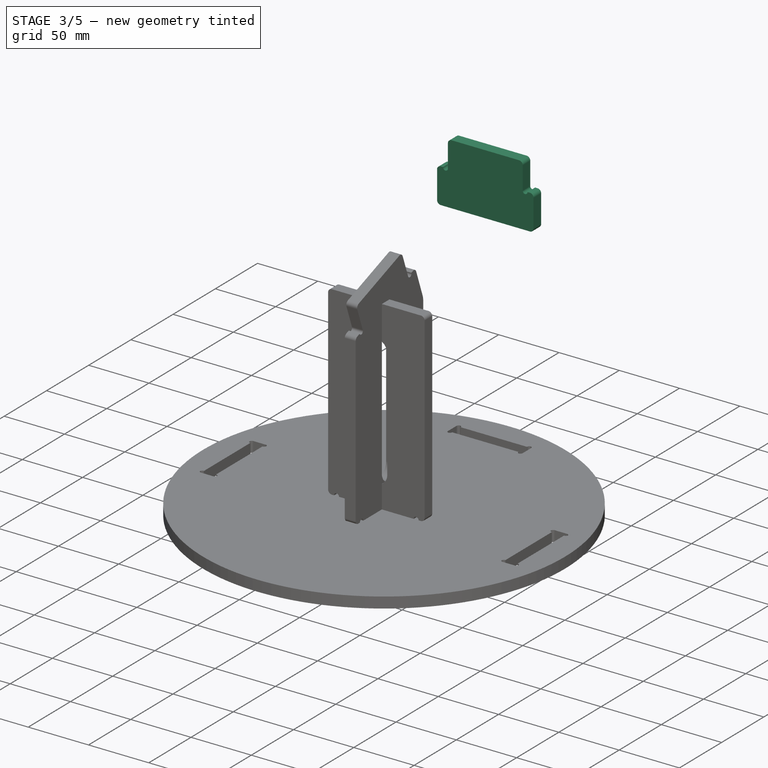
[diagram: stage 3 of 5 — iso view after this stage's code; geometry added in this stage tinted green]
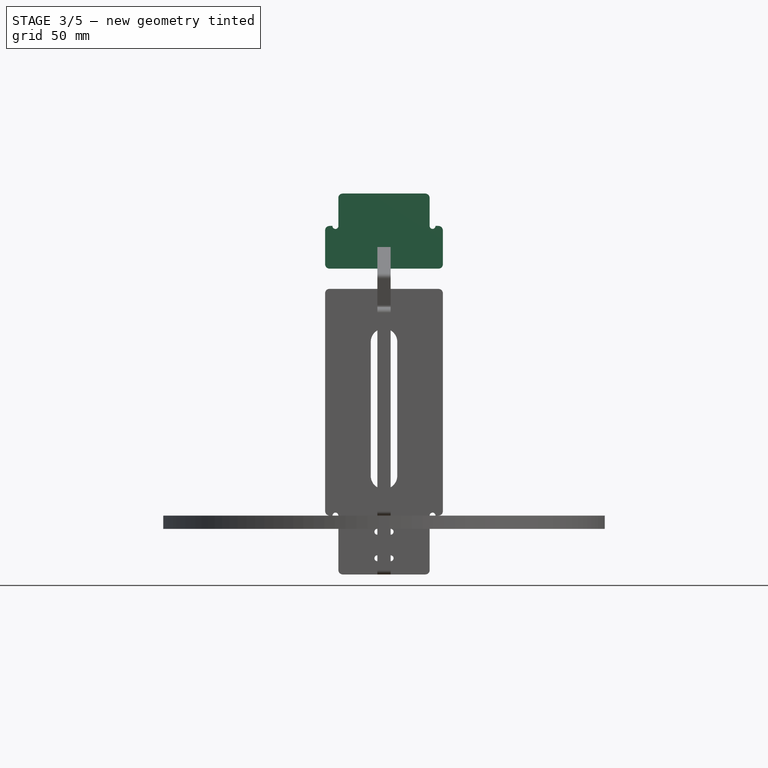
[diagram: stage 3 of 5 — front view after this stage's code; geometry added in this stage tinted green]
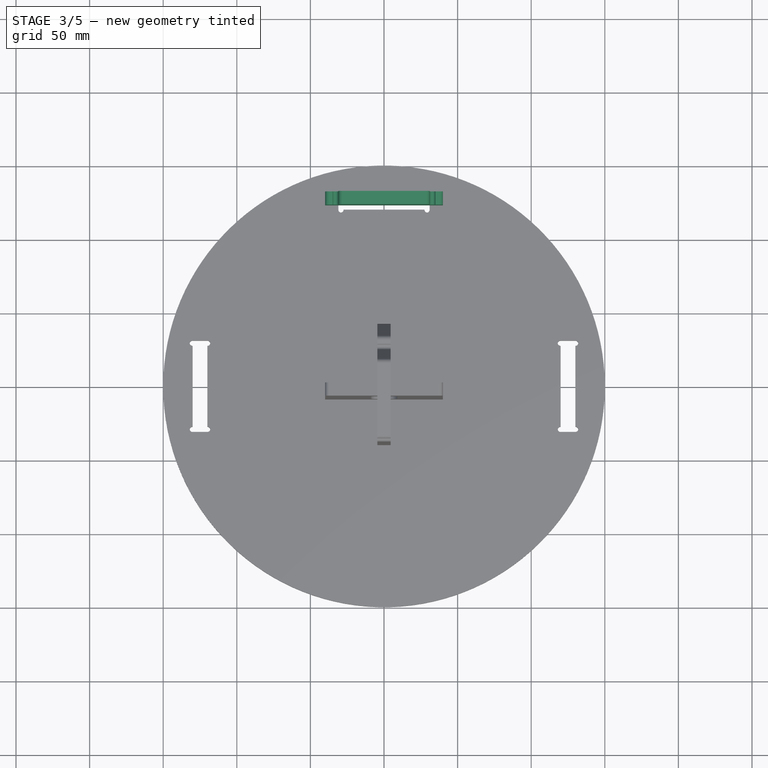
[diagram: stage 3 of 5 — top view after this stage's code; geometry added in this stage tinted green]
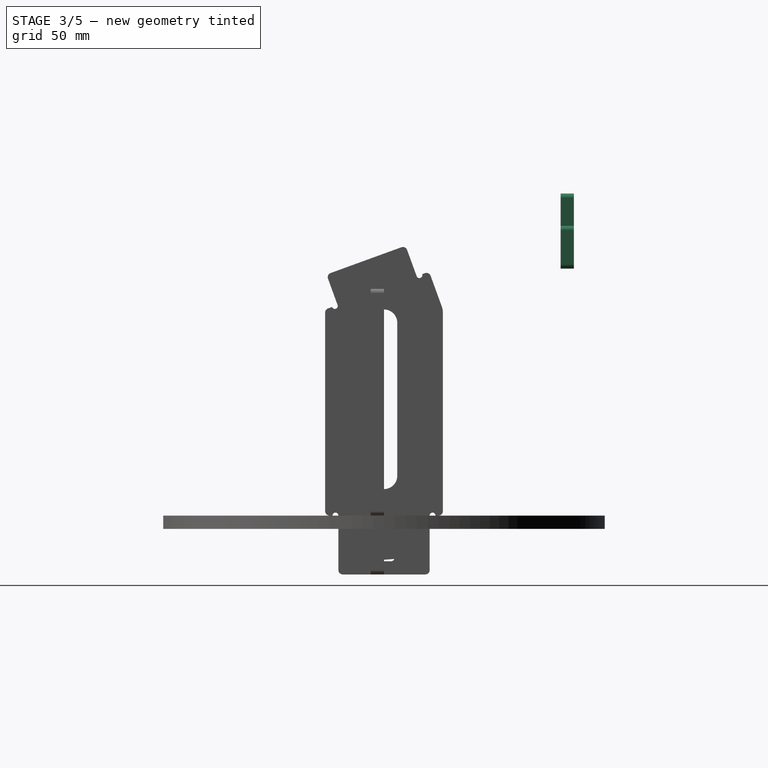
[diagram: stage 3 of 5 — right view after this stage's code; geometry added in this stage tinted green]
FEATURE [Sketcher::SketchObject] Sketch005
  MapMode = 5
  Support = -> [XY_Plane009]
  expr: Constraints[52] = Spreadsheet.hole_dia * 3
  expr: Constraints[16] = Spreadsheet.structure_inner_width
  expr: Constraints[47] = Spreadsheet.hole_dia
  expr: Constraints[34] = Spreadsheet.board_padding
  expr: Constraints[97] = Spreadsheet.mill_dia
  expr: Constraints[17] = Spreadsheet.board_thickness + Spreadsheet.margin
  expr: Constraints[1] = Spreadsheet.board_dia
  expr: Constraints[62] = Spreadsheet.mill_dia
  expr: Constraints[135] = Spreadsheet.mill_dia
  sketch-geometry (68):
    g0: Circle CenterX=0 CenterY=0 CenterZ=0 NormalX=0 NormalY=0 NormalZ=1 AngleXU=0 Radius=150
    g1: LineSegment [constr] StartX=120 StartY=31 StartZ=0 EndX=130 EndY=31 EndZ=0
    g2: LineSegment [constr] StartX=130 StartY=31 StartZ=0 EndX=130 EndY=-31 EndZ=0
    g3: LineSegment [constr] StartX=130 StartY=-31 StartZ=0 EndX=120 EndY=-31 EndZ=0
    g4: LineSegment [constr] StartX=120 StartY=-31 StartZ=0 EndX=120 EndY=31 EndZ=0
    g5: LineSegment [constr] StartX=-31 StartY=130 StartZ=0 EndX=31 EndY=130 EndZ=0
    g6: LineSegment [constr] StartX=31 StartY=130 StartZ=0 EndX=31 EndY=120 EndZ=0
    g7: LineSegment [constr] StartX=31 StartY=120 StartZ=0 EndX=-31 EndY=120 EndZ=0
    g8: LineSegment [constr] StartX=-31 StartY=120 StartZ=0 EndX=-31 EndY=130 EndZ=0
    g9: LineSegment [constr] StartX=-120 StartY=31 StartZ=0 EndX=-130 EndY=31 EndZ=0
    g10: LineSegment [constr] StartX=-130 StartY=31 StartZ=0 EndX=-130 EndY=-31 EndZ=0
    g11: LineSegment [constr] StartX=-130 StartY=-31 StartZ=0 EndX=-120 EndY=-31 EndZ=0
    g12: LineSegment [constr] StartX=-120 StartY=-31 StartZ=0 EndX=-120 EndY=31 EndZ=0
    g13: LineSegment [constr] StartX=0 StartY=150 StartZ=0 EndX=0 EndY=130 EndZ=0
    g14: LineSegment [constr] StartX=-150 StartY=0 StartZ=0 EndX=-130 EndY=0 EndZ=0
    g15: LineSegment [constr] StartX=130 StartY=0 StartZ=0 EndX=150 EndY=0 EndZ=0
    g16: Circle CenterX=-19.5 CenterY=0 CenterZ=0 NormalX=0 NormalY=0 NormalZ=1 AngleXU=0 Radius=3.25
    g17: Circle CenterX=19.5 CenterY=0 CenterZ=0 NormalX=0 NormalY=0 NormalZ=1 AngleXU=0 Radius=3.25
    g18: LineSegment [constr] StartX=-19.5 StartY=0 StartZ=0 EndX=0 EndY=0 EndZ=0
    g19: LineSegment [constr] StartX=19.5 StartY=0 StartZ=0 EndX=0 EndY=0 EndZ=0
    g20: Circle [constr] CenterX=29 CenterY=130 CenterZ=0 NormalX=0 NormalY=0 NormalZ=1 AngleXU=0 Radius=2
    g21: Circle [constr] CenterX=29 CenterY=120 CenterZ=0 NormalX=0 NormalY=0 NormalZ=1 AngleXU=0 Radius=2
    g22: Circle [constr] CenterX=-29 CenterY=130 CenterZ=0 NormalX=0 NormalY=0 NormalZ=1 AngleXU=0 Radius=2
    g23: Circle [constr] CenterX=-29 CenterY=120 CenterZ=0 NormalX=0 NormalY=0 NormalZ=1 AngleXU=0 Radius=2
    g24: GeomPoint X=-27 Y=130 Z=0
    g25: GeomPoint X=-27 Y=120 Z=0
    g26: GeomPoint X=27 Y=120 Z=0
    g27: GeomPoint X=27 Y=130 Z=0
    g28: ArcOfCircle CenterX=29 CenterY=130 CenterZ=0 NormalX=0 NormalY=0 NormalZ=1 AngleXU=0 Radius=2 StartAngle=-9e-16 EndAngle=3.14159
    g29: ArcOfCircle CenterX=29 CenterY=120 CenterZ=0 NormalX=0 NormalY=0 NormalZ=1 AngleXU=0 Radius=2 StartAngle=3.14159 EndAngle=6.28319
    g30: ArcOfCircle CenterX=-29 CenterY=120 CenterZ=0 NormalX=0 NormalY=0 NormalZ=1 AngleXU=0 Radius=2 StartAngle=3.14159 EndAngle=6.28319
    g31: ArcOfCircle CenterX=-29 CenterY=130 CenterZ=0 NormalX=0 NormalY=0 NormalZ=1 AngleXU=0 Radius=2 StartAngle=4.99067e-07 EndAngle=3.14159
    g32: LineSegment StartX=-27 StartY=130 StartZ=0 EndX=27 EndY=130 EndZ=0
    g33: LineSegment StartX=31 StartY=130 StartZ=0 EndX=31 EndY=120 EndZ=0
    g34: LineSegment StartX=27 StartY=120 StartZ=0 EndX=-27 EndY=120 EndZ=0
    g35: LineSegment StartX=-31 StartY=120 StartZ=0 EndX=-31 EndY=130 EndZ=0
    g36: Circle [constr] CenterX=130 CenterY=29 CenterZ=0 NormalX=0 NormalY=0 NormalZ=1 AngleXU=0 Radius=2
    g37: Circle [constr] CenterX=120 CenterY=29 CenterZ=0 NormalX=0 NormalY=0 NormalZ=1 AngleXU=0 Radius=2
    g38: Circle [constr] CenterX=120 CenterY=-29 CenterZ=0 NormalX=0 NormalY=0 NormalZ=1 AngleXU=0 Radius=2
    g39: Circle [constr] CenterX=130 CenterY=-29 CenterZ=0 NormalX=0 NormalY=0 NormalZ=1 AngleXU=0 Radius=2
    g40: GeomPoint X=120 Y=-27 Z=0
    g41: GeomPoint X=129.999 Y=-27 Z=0
    g42: GeomPoint X=120 Y=27 Z=0
    g43: GeomPoint X=129.999 Y=27 Z=0
    g44: ArcOfCircle CenterX=120 CenterY=29 CenterZ=0 NormalX=0 NormalY=0 NormalZ=1 AngleXU=0 Radius=2 StartAngle=1.5708 EndAngle=4.71239
    g45: ArcOfCircle CenterX=130 CenterY=29 CenterZ=0 NormalX=0 NormalY=0 NormalZ=1 AngleXU=0 Radius=2 StartAngle=4.71169 EndAngle=7.85398
    g46: ArcOfCircle CenterX=130 CenterY=-29 CenterZ=0 NormalX=0 NormalY=0 NormalZ=1 AngleXU=0 Radius=2 StartAngle=4.71239 EndAngle=7.85468
    g47: ArcOfCircle CenterX=120 CenterY=-29 CenterZ=0 NormalX=0 NormalY=0 NormalZ=1 AngleXU=0 Radius=2 StartAngle=1.5708 EndAngle=4.71239
    g48: LineSegment StartX=120 StartY=31 StartZ=0 EndX=130 EndY=31 EndZ=0
    g49: LineSegment StartX=129.999 StartY=27 StartZ=0 EndX=129.999 EndY=-27 EndZ=0
    g50: LineSegment StartX=120 StartY=-31 StartZ=0 EndX=130 EndY=-31 EndZ=0
    g51: LineSegment StartX=120 StartY=-27 StartZ=0 EndX=120 EndY=27 EndZ=0
    g52: Circle [constr] CenterX=-120 CenterY=29 CenterZ=0 NormalX=0 NormalY=0 NormalZ=1 AngleXU=0 Radius=2
    g53: Circle [constr] CenterX=-130 CenterY=29 CenterZ=0 NormalX=0 NormalY=0 NormalZ=1 AngleXU=0 Radius=2
    g54: Circle [constr] CenterX=-120 CenterY=-29 CenterZ=0 NormalX=0 NormalY=0 NormalZ=1 AngleXU=0 Radius=2
    g55: Circle [constr] CenterX=-130 CenterY=-29 CenterZ=0 NormalX=0 NormalY=0 NormalZ=1 AngleXU=0 Radius=2
    g56: GeomPoint X=-130 Y=27 Z=0
    g57: GeomPoint X=-120 Y=27 Z=0
    g58: GeomPoint X=-130 Y=-27 Z=0
    g59: GeomPoint X=-120 Y=-27 Z=0
    g60: ArcOfCircle CenterX=-120 CenterY=-29 CenterZ=0 NormalX=0 NormalY=0 NormalZ=1 AngleXU=0 Radius=2 StartAngle=4.71239 EndAngle=7.85398
    g61: ArcOfCircle CenterX=-130 CenterY=-29 CenterZ=0 NormalX=0 NormalY=0 NormalZ=1 AngleXU=0 Radius=2 StartAngle=1.5708 EndAngle=4.71239
    g62: ArcOfCircle CenterX=-130 CenterY=29 CenterZ=0 NormalX=0 NormalY=0 NormalZ=1 AngleXU=0 Radius=2 StartAngle=1.5708 EndAngle=4.71239
    g63: ArcOfCircle CenterX=-120 CenterY=29 CenterZ=0 NormalX=0 NormalY=0 NormalZ=1 AngleXU=0 Radius=2 StartAngle=4.71239 EndAngle=7.85398
    g64: LineSegment StartX=-130 StartY=31 StartZ=0 EndX=-120 EndY=31 EndZ=0
    g65: LineSegment StartX=-120 StartY=27 StartZ=0 EndX=-120 EndY=-27 EndZ=0
    g66: LineSegment StartX=-120 StartY=-31 StartZ=0 EndX=-130 EndY=-31 EndZ=0
    g67: LineSegment StartX=-130 StartY=-27 StartZ=0 EndX=-130 EndY=27 EndZ=0
  constraints (165):
    c: Coincident(g0,g-1)
    c: Diameter(g0) = 300
    c: Coincident(g1,g2)
    c: Coincident(g2,g3)
    c: Coincident(g3,g4)
    c: Coincident(g4,g1)
    c: Horizontal(g1)
    c: Horizontal(g3)
    c: Vertical(g2)
    c: Coincident(g5,g6)
    c: Coincident(g6,g7)
    c: Coincident(g7,g8)
    c: Coincident(g8,g5)
    c: Horizontal(g7)
    c: Vertical(g6)
    c: Vertical(g8)
    c: DistanceX(g7,g7) = 62
    c: DistanceY(g8,g8) = 10
    c: Coincident(g9,g10)
    c: Coincident(g10,g11)
    c: Coincident(g11,g12)
    c: Coincident(g12,g9)
    c: Horizontal(g9)
    c: Horizontal(g11)
    c: Vertical(g12)
    c: Equal(g8,g9)
    c: Equal(g9,g1)
    c: Equal(g5,g10)
    c: Equal(g10,g2)
    c: Symmetric(g5,g5,g-2)
    c: PointOnObject(g13,g0)
    c: Vertical(g13)
    c: PointOnObject(g13,g5)
    c: PointOnObject(g13,g-2)
    c: DistanceY(g13,g13) = 20
    c: Symmetric(g9,g10,g-1)
    c: PointOnObject(g14,g0)
    c: PointOnObject(g14,g10)
    c: Horizontal(g14)
    c: PointOnObject(g14,g-1)
    c: Equal(g13,g14)
    c: PointOnObject(g15,g2)
    c: PointOnObject(g15,g0)
    c: Horizontal(g15)
    c: PointOnObject(g15,g-1)
    c: Equal(g15,g13)
    c: PointOnObject(g16,g-1)
    c: Diameter(g16) = 6.5
    c: PointOnObject(g17,g-1)
    c: Equal(g17,g16)
    c: Coincident(g18,g16)
    c: Coincident(g18,g0)
    c: DistanceX(g18,g18) = 19.5
    c: Coincident(g19,g17)
    c: Coincident(g19,g0)
    c: Equal(g19,g18)
    c: Equal(g15,g13)
    c: Symmetric(g1,g3,g-1)
    c: PointOnObject(g20,g5)
    c: PointOnObject(g21,g7)
    c: PointOnObject(g22,g5)
    c: PointOnObject(g23,g7)
    c: Diameter(g23) = 4
    c: Equal(g21,g20)
    c: Equal(g20,g22)
    c: Equal(g22,g23)
    c: PointOnObject(g5,g22)
    c: PointOnObject(g7,g23)
    c: PointOnObject(g5,g20)
    c: PointOnObject(g6,g21)
    c: PointOnObject(g25,g7)
    c: PointOnObject(g26,g7)
    c: Coincident(g28,g20)
    c: Coincident(g28,g27)
    c: Coincident(g28,g5)
    c: Coincident(g29,g21)
    c: Coincident(g29,g26)
    c: Coincident(g29,g6)
    c: Coincident(g30,g23)
    c: Coincident(g30,g7)
    c: Coincident(g30,g25)
    c: Coincident(g31,g22)
    c: Coincident(g31,g5)
    c: Coincident(g31,g24)
    c: Coincident(g32,g24)
    c: Coincident(g32,g27)
    c: Horizontal(g32)
    c: Coincident(g33,g28)
    c: Coincident(g33,g29)
    c: Coincident(g34,g26)
    c: Coincident(g34,g25)
    c: Coincident(g35,g30)
    c: Coincident(g35,g31)
    c: PointOnObject(g36,g2)
    c: PointOnObject(g37,g4)
    c: PointOnObject(g38,g4)
    c: PointOnObject(g39,g2)
    c: Diameter(g37) = 4
    c: Equal(g38,g39)
    c: Equal(g39,g36)
    c: Equal(g36,g37)
    c: PointOnObject(g1,g37)
    c: PointOnObject(g1,g36)
    c: PointOnObject(g3,g38)
    c: PointOnObject(g2,g39)
    c: PointOnObject(g40,g4)
    c: PointOnObject(g42,g37)
    c: PointOnObject(g42,g4)
    c: Coincident(g44,g37)
    c: Coincident(g44,g1)
    c: Coincident(g45,g36)
    c: Coincident(g45,g1)
    c: Coincident(g45,g43)
    c: Coincident(g46,g39)
    c: Coincident(g46,g41)
    c: Coincident(g46,g2)
    c: Coincident(g47,g38)
    c: Coincident(g47,g40)
    c: Coincident(g47,g3)
    c: Coincident(g48,g44)
    c: Coincident(g48,g45)
    c: Coincident(g49,g43)
    c: Coincident(g49,g41)
    c: Vertical(g49)
    c: Coincident(g50,g47)
    c: Coincident(g50,g46)
    c: Coincident(g51,g40)
    c: Coincident(g51,g44)
    c: Vertical(g51)
    c: PointOnObject(g52,g12)
    c: PointOnObject(g53,g10)
    c: PointOnObject(g54,g12)
    c: PointOnObject(g11,g54)
    c: PointOnObject(g55,g10)
    c: PointOnObject(g10,g55)
    c: Diameter(g52) = 4
    c: Equal(g54,g55)
    c: Equal(g55,g53)
    c: Equal(g53,g52)
    c: PointOnObject(g9,g53)
    c: PointOnObject(g9,g52)
    c: PointOnObject(g56,g10)
    c: PointOnObject(g57,g12)
    c: PointOnObject(g58,g10)
    c: PointOnObject(g59,g12)
    c: Coincident(g60,g54)
    c: Coincident(g60,g59)
    c: Coincident(g60,g11)
    c: Coincident(g61,g55)
    c: Coincident(g61,g58)
    c: Coincident(g61,g10)
    c: Coincident(g62,g53)
    c: Coincident(g62,g56)
    c: Coincident(g62,g9)
    c: Coincident(g63,g52)
    c: Coincident(g63,g9)
    c: Coincident(g63,g57)
    c: Coincident(g64,g62)
    c: Coincident(g64,g63)
    c: Coincident(g65,g57)
    c: Coincident(g65,g59)
    c: Coincident(g66,g60)
    c: Coincident(g66,g61)
    c: Coincident(g67,g58)
    c: Coincident(g67,g56)
FEATURE [PartDesign::Pad] Pad005
  Direction = (1,1,1)
  Length = 9
  Length2 = 100
  Profile = -> Sketch005
  Type = 0
  expr: Length = Spreadsheet.board_thickness
FEATURE [PartDesign::Body] Body005  label="structure_front"
  Group = -> [Sketch003,Pad003,Fillet003]
  Origin = -> Origin005
  Tip = -> Fillet003
FEATURE [Sketcher::SketchObject] Sketch006
  MapMode = 5
  Placement = pos=(0,120,0) rot=(0,0.707107,0.707107;3.14159rad)
  expr: Constraints[9] = Spreadsheet.structure_inner_width
  expr: Constraints[13] = Spreadsheet.structure_pad_width
  expr: Constraints[16] = Spreadsheet.structure_head_height
  expr: Constraints[11] = Spreadsheet.structure_head_height + 7mm
  expr: Constraints[26] = Spreadsheet.mill_dia
  expr: Constraints[33] = Spreadsheet.mill_dia
  sketch-geometry (18):
    g0: LineSegment [constr] StartX=-40 StartY=205.762 StartZ=0 EndX=-31 EndY=205.762 EndZ=0
    g1: LineSegment [constr] StartX=-31 StartY=205.762 StartZ=0 EndX=-31 EndY=227.762 EndZ=0
    g2: LineSegment StartX=-31 StartY=227.762 StartZ=0 EndX=31 EndY=227.762 EndZ=0
    g3: LineSegment [constr] StartX=31 StartY=227.762 StartZ=0 EndX=31 EndY=205.762 EndZ=0
    g4: LineSegment [constr] StartX=31 StartY=205.762 StartZ=0 EndX=40 EndY=205.762 EndZ=0
    g5: LineSegment StartX=40 StartY=205.762 StartZ=0 EndX=40 EndY=176.762 EndZ=0
    g6: LineSegment StartX=-40 StartY=176.762 StartZ=0 EndX=-40 EndY=205.762 EndZ=0
    g7: LineSegment StartX=-40 StartY=176.762 StartZ=0 EndX=40 EndY=176.762 EndZ=0
    g8: Circle [constr] CenterX=33 CenterY=205.762 CenterZ=0 NormalX=0 NormalY=0 NormalZ=1 AngleXU=0 Radius=2
    g9: GeomPoint X=35 Y=205.762 Z=0
    g10: ArcOfCircle CenterX=33 CenterY=205.7 CenterZ=0 NormalX=0 NormalY=0 NormalZ=1 AngleXU=0 Radius=2.00095 StartAngle=3.11074 EndAngle=6.31404
    g11: Circle [constr] CenterX=-33 CenterY=205.762 CenterZ=0 NormalX=0 NormalY=0 NormalZ=1 AngleXU=0 Radius=2
    g12: GeomPoint X=-35 Y=205.762 Z=0
    g13: ArcOfCircle CenterX=-33 CenterY=205.762 CenterZ=0 NormalX=0 NormalY=0 NormalZ=1 AngleXU=0 Radius=2 StartAngle=3.14159 EndAngle=6.28319
    g14: LineSegment StartX=-40 StartY=205.762 StartZ=0 EndX=-35 EndY=205.762 EndZ=0
    g15: LineSegment StartX=-31 StartY=205.762 StartZ=0 EndX=-31 EndY=227.762 EndZ=0
    g16: LineSegment StartX=31 StartY=227.762 StartZ=0 EndX=31 EndY=205.762 EndZ=0
    g17: LineSegment StartX=35 StartY=205.762 StartZ=0 EndX=40 EndY=205.762 EndZ=0
  constraints (48):
    c: Coincident(g0,g1)
    c: Coincident(g1,g2)
    c: Horizontal(g2)
    c: Coincident(g2,g3)
    c: Coincident(g3,g4)
    c: Coincident(g4,g5)
    c: Vertical(g5)
    c: Coincident(g6,g0)
    c: Vertical(g6)
    c: DistanceX(g2,g2) = 62
    c: Horizontal(g0)
    c: DistanceY(g6,g6) = 29
    c: Equal(g6,g5)
    c: DistanceX(g0,g0) = 9
    c: Equal(g0,g4)
    c: Vertical(g1)
    c: DistanceY(g1,g1) = 22
    c: Vertical(g3)
    c: Equal(g1,g3)
    c: Equal(g6,g5)
    c: Symmetric(g6,g5,g-2)
    c: Equal(g5,g6)
    c: Equal(g6,g5)
    c: Coincident(g7,g6)
    c: Coincident(g7,g5)
    c: PointOnObject(g8,g4)
    c: Diameter(g8) = 4
    c: PointOnObject(g3,g8)
    c: PointOnObject(g9,g8)
    c: PointOnObject(g9,g4)
    c: Coincident(g10,g3)
    c: Coincident(g10,g9)
    c: PointOnObject(g11,g0)
    c: Diameter(g11) = 4
    c: PointOnObject(g0,g11)
    c: PointOnObject(g12,g11)
    c: PointOnObject(g12,g0)
    c: Coincident(g13,g0)
    c: Coincident(g13,g12)
    c: Coincident(g14,g6)
    c: Coincident(g14,g12)
    c: Coincident(g15,g13)
    c: Coincident(g15,g2)
    c: Coincident(g16,g2)
    c: Coincident(g16,g10)
    c: Coincident(g17,g9)
    c: Coincident(g17,g5)
    c: Horizontal(g17)
FEATURE [PartDesign::Pad] Pad007
  Direction = (1,1,1)
  Length = 9
  Length2 = 100
  Placement = pos=(0,120,0) rot=(0,0.707107,0.707107;3.14159rad)
  Profile = -> Sketch006
  Type = 0
  expr: Length = Spreadsheet.board_thickness
FEATURE [PartDesign::Fillet] Fillet005
  Base = -> Pad007 [Edge14,Edge1,Edge2,Edge11,Edge23,Edge26]
  BaseFeature = -> Pad007
  Placement = pos=(0,120,0) rot=(0,0.707107,0.707107;3.14159rad)
  Radius = 3
  SupportTransform = true
  expr: Radius = Spreadsheet.filet_sm
FEATURE [PartDesign::Body] Body002  label="lock"
  Group = -> [Sketch002,Pad002,Fillet008]
  Origin = -> Origin002
  Tip = -> Fillet008
FEATURE [PartDesign::FeatureBase] Clone
  BaseFeature = -> Body002
FEATURE [PartDesign::Body] Body006  label="lock_clone_02"
  BaseFeature = -> Body002
  Group = -> [Clone002]
  Origin = -> Origin006
  Placement = pos=(0,0,0) rot=(0,0,1;1.5708rad)
  Tip = -> Clone002
FEATURE [App::LinkGroup] LinkGroup002  label="leg_front"
  ElementList = -> [Body006,Body005]
  LinkMode = 0
  Placement = pos=(0,-125,0) rot=(0,0,1;0rad)
FEATURE [PartDesign::FeatureBase] Clone003
  BaseFeature = -> Body003
  Placement = pos=(0,0,0) rot=(0,0,1;1.5708rad)
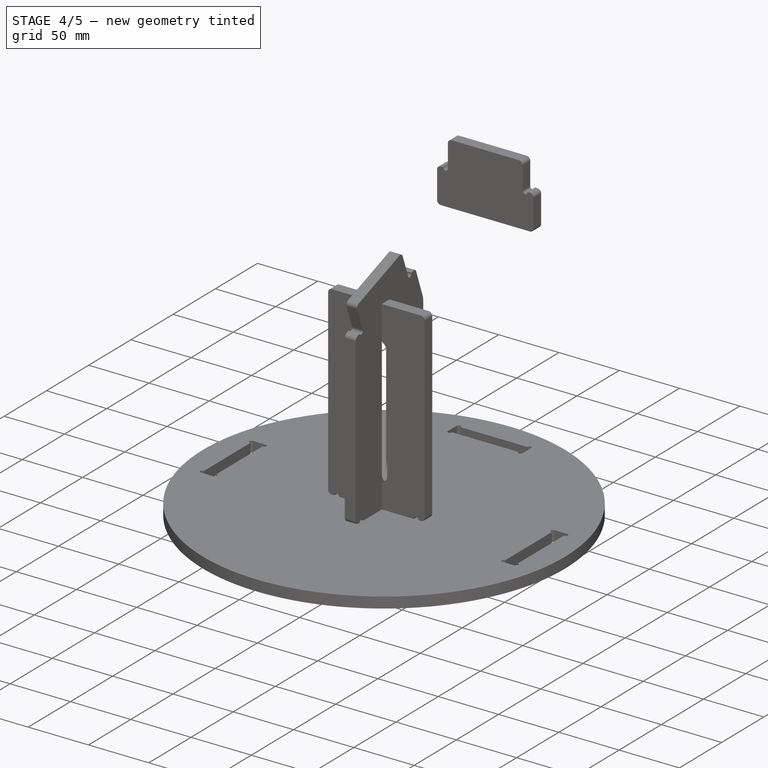
[diagram: stage 4 of 5 — iso view after this stage's code; geometry added in this stage tinted green]
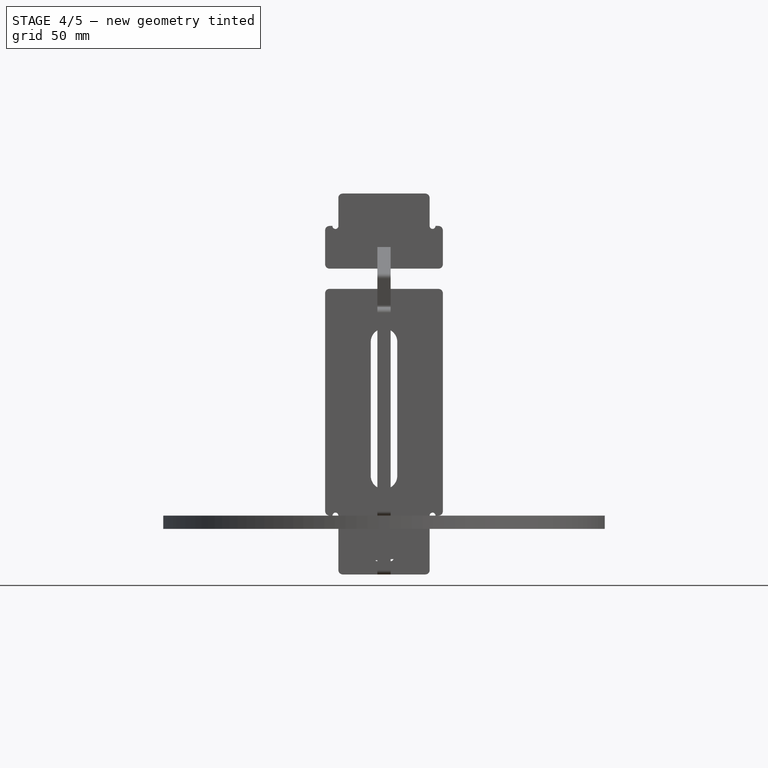
[diagram: stage 4 of 5 — front view after this stage's code; geometry added in this stage tinted green]
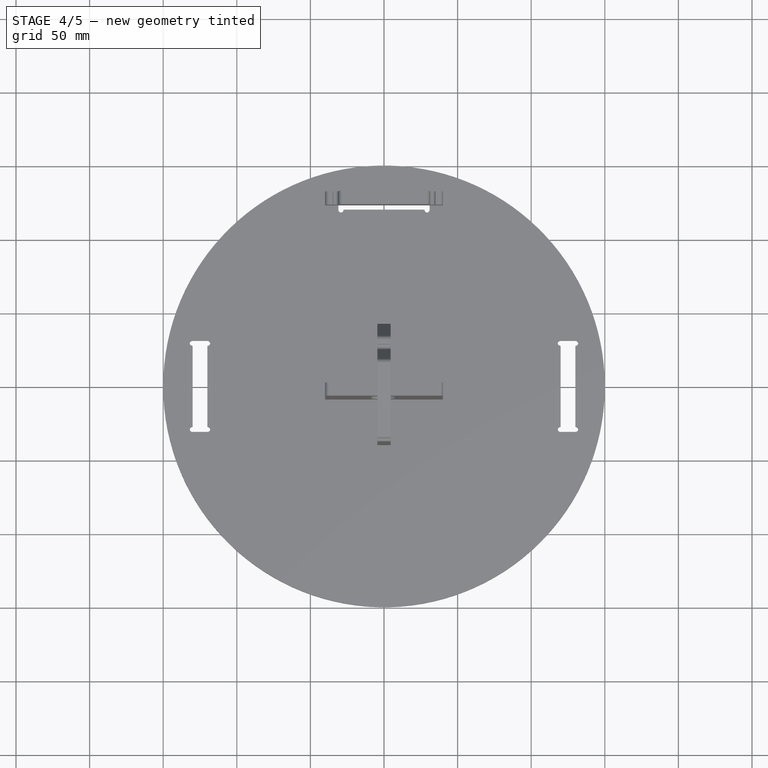
[diagram: stage 4 of 5 — top view after this stage's code; geometry added in this stage tinted green]
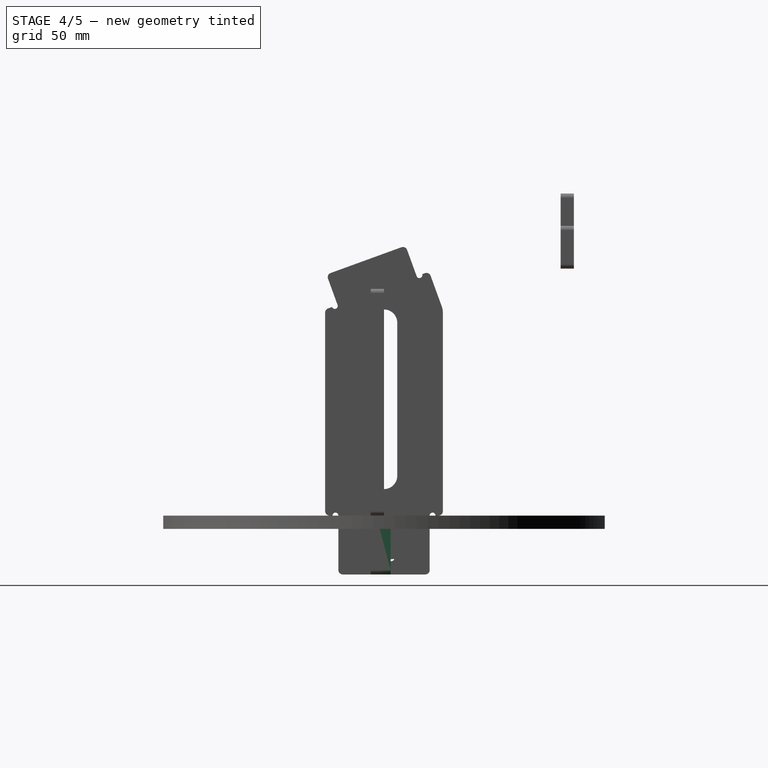
[diagram: stage 4 of 5 — right view after this stage's code; geometry added in this stage tinted green]
FEATURE [Sketcher::SketchObject] Sketch003
  MapMode = 5
  Placement = pos=(0,0,0) rot=(1,0,0;1.5708rad)
  Support = -> [XZ_Plane005]
  expr: Constraints[8] = Spreadsheet.structure_inner_width
  expr: Constraints[19] = Spreadsheet.lock_height
  expr: Constraints[20] = Spreadsheet.board_thickness
  expr: Constraints[9] = Spreadsheet.structure_foot_height
  expr: Constraints[22] = Spreadsheet.mill_dia
  expr: Constraints[18] = Spreadsheet.board_thickness
  expr: Constraints[29] = Spreadsheet.mill_dia
  expr: Constraints[38] = Spreadsheet.mill_dia
  expr: Constraints[46] = Spreadsheet.mill_dia
  sketch-geometry (23):
    g0: LineSegment StartX=-31 StartY=9 StartZ=0 EndX=31 EndY=9 EndZ=0
    g1: LineSegment StartX=31 StartY=9 StartZ=0 EndX=31 EndY=-31 EndZ=0
    g2: LineSegment StartX=31 StartY=-31 StartZ=0 EndX=-31 EndY=-31 EndZ=0
    g3: LineSegment StartX=-31 StartY=-31 StartZ=0 EndX=-31 EndY=9 EndZ=0
    g4: LineSegment [constr] StartX=-4.5 StartY=0 StartZ=0 EndX=4.5 EndY=0 EndZ=0
    g5: LineSegment [constr] StartX=4.5 StartY=0 StartZ=0 EndX=4.5 EndY=-22 EndZ=0
    g6: LineSegment [constr] StartX=4.5 StartY=-22 StartZ=0 EndX=-4.5 EndY=-22 EndZ=0
    g7: LineSegment [constr] StartX=-4.5 StartY=-22 StartZ=0 EndX=-4.5 EndY=0 EndZ=0
    g8: LineSegment [constr] StartX=-4.5 StartY=0 StartZ=0 EndX=-4.5 EndY=9 EndZ=0
    g9: ArcOfCircle CenterX=4.5 CenterY=-2 CenterZ=0 NormalX=0 NormalY=0 NormalZ=1 AngleXU=0 Radius=2 StartAngle=4.71239 EndAngle=7.85398
    g10: GeomPoint X=4.5 Y=-4 Z=0
    g11: ArcOfCircle CenterX=-4.5 CenterY=-2 CenterZ=0 NormalX=0 NormalY=0 NormalZ=1 AngleXU=0 Radius=2 StartAngle=1.5708 EndAngle=4.71239
    g12: GeomPoint X=-4.5 Y=-4 Z=0
    g13: Circle [constr] CenterX=4.5 CenterY=-20 CenterZ=0 NormalX=0 NormalY=0 NormalZ=1 AngleXU=0 Radius=2
    g14: GeomPoint X=4.5 Y=-18 Z=0
    g15: ArcOfCircle CenterX=4.5 CenterY=-20 CenterZ=0 NormalX=0 NormalY=0 NormalZ=1 AngleXU=0 Radius=2 StartAngle=4.71239 EndAngle=7.85398
    g16: Circle [constr] CenterX=-4.5 CenterY=-20 CenterZ=0 NormalX=0 NormalY=0 NormalZ=1 AngleXU=0 Radius=2
    g17: GeomPoint X=-4.5 Y=-18 Z=0
    g18: ArcOfCircle CenterX=-4.5 CenterY=-20 CenterZ=0 NormalX=0 NormalY=0 NormalZ=1 AngleXU=0 Radius=2 StartAngle=1.5708 EndAngle=4.71239
    g19: LineSegment StartX=-4.5 StartY=0 StartZ=0 EndX=4.5 EndY=0 EndZ=0
    g20: LineSegment StartX=4.5 StartY=-4 StartZ=0 EndX=4.5 EndY=-18 EndZ=0
    g21: LineSegment StartX=4.5 StartY=-22 StartZ=0 EndX=-4.5 EndY=-22 EndZ=0
    g22: LineSegment StartX=-4.5 StartY=-18 StartZ=0 EndX=-4.5 EndY=-4 EndZ=0
  constraints (62):
    c: Coincident(g0,g1)
    c: Coincident(g1,g2)
    c: Coincident(g2,g3)
    c: Coincident(g3,g0)
    c: Horizontal(g2)
    c: Vertical(g1)
    c: Vertical(g3)
    c: Symmetric(g0,g0,g-2)
    c: DistanceX(g2,g2) = 62
    c: DistanceY(g3,g3) = 40
    c: Coincident(g5,g6)
    c: Coincident(g6,g7)
    c: Vertical(g5)
    c: Vertical(g7)
    c: PointOnObject(g7,g-1)
    c: Coincident(g8,g7)
    c: PointOnObject(g8,g0)
    c: Vertical(g8)
    c: DistanceY(g8,g8) = 9
    c: DistanceY(g7,g7) = 22
    c: DistanceX(g6,g6) = 9
    c: PointOnObject(g9,g5)
    c: Diameter(g9) = 4
    c: PointOnObject(g10,g9)
    c: PointOnObject(g10,g5)
    c: PointOnObject(g9,g5)
    c: Coincident(g9,g4)
    c: Coincident(g9,g5)
    c: PointOnObject(g11,g7)
    c: Diameter(g11) = 4
    c: PointOnObject(g12,g11)
    c: PointOnObject(g12,g7)
    c: Symmetric(g6,g5,g-2)
    c: PointOnObject(g9,g-1)
    c: Coincident(g11,g4)
    c: PointOnObject(g11,g7)
    c: Coincident(g11,g7)
    c: PointOnObject(g13,g5)
    c: Diameter(g13) = 4
    c: PointOnObject(g5,g13)
    c: PointOnObject(g14,g13)
    c: PointOnObject(g14,g5)
    c: Coincident(g15,g5)
    c: Coincident(g15,g14)
    c: Tangent(g15,g13)
    c: PointOnObject(g16,g7)
    c: Diameter(g16) = 4
    c: PointOnObject(g6,g16)
    c: PointOnObject(g17,g16)
    c: PointOnObject(g17,g7)
    c: Coincident(g18,g6)
    c: Coincident(g18,g17)
    c: Coincident(g19,g11)
    c: Coincident(g19,g9)
    c: Coincident(g20,g9)
    c: Coincident(g20,g14)
    c: Coincident(g21,g15)
    c: PointOnObject(g21,g16)
    c: Horizontal(g21)
    c: Coincident(g22,g17)
    c: Coincident(g22,g11)
    c: Tangent(g18,g16)
FEATURE [PartDesign::Pad] Pad003
  Direction = (1,1,1)
  Length = 9
  Length2 = 100
  Midplane = true
  Placement = pos=(0,0,0) rot=(1,0,0;1.5708rad)
  Profile = -> Sketch003
  Type = 0
  expr: Length = Spreadsheet.board_thickness
FEATURE [PartDesign::Body] Body009  label="top"
  Group = -> [Sketch005,Pad005]
  Origin = -> Origin009
  Placement = pos=(0,-4.96447,162.183) rot=(1,0,0;0.349066rad)
  Tip = -> Pad005
FEATURE [PartDesign::Fillet] Fillet003
  Base = -> Pad003 [Edge2,Edge5,Edge1,Edge8]
  BaseFeature = -> Pad003
  Placement = pos=(0,0,0) rot=(1,0,0;1.5708rad)
  Radius = 3
  SupportTransform = true
  expr: Radius = Spreadsheet.filet_sm
FEATURE [PartDesign::Body] Body003  label="lock_clone"
  BaseFeature = -> Body002
  Group = -> [Clone]
  Origin = -> Origin003
  Tip = -> Clone
FEATURE [PartDesign::FeatureBase] Clone002
  BaseFeature = -> Body002
FEATURE [PartDesign::Body] Body001  label="structure"
  Group = -> [Sketch001,Pad001,Fillet,Fillet010]
  Origin = -> Origin001
  Tip = -> Fillet010
FEATURE [App::LinkGroup] LinkGroup001  label="leg_left"
  ElementList = -> [Body002,Body001]
  LinkMode = 0
  Placement = pos=(-125,1.49012e-05,0) rot=(0,0,1;0rad)
FEATURE [PartDesign::FeatureBase] Clone001
  BaseFeature = -> Body001
FEATURE [PartDesign::Body] Body004  label="structure_clone"
  BaseFeature = -> Body001
  Group = -> [Clone001]
  Origin = -> Origin004
  Tip = -> Clone001
FEATURE [App::LinkGroup] LinkGroup  label="leg_right"
  ElementList = -> [Body004,Body003]
  LinkMode = 0
  Placement = pos=(125,-1.49012e-05,-2.28882e-05) rot=(0,0,1;0rad)
FEATURE [TechDraw::DrawViewPart] View001
  CoarseView = false
  Direction = (-1,0,0)
  Focus = 100
  HardHidden = false
  IsoCount = 0
  IsoHidden = false
  IsoVisible = false
  LockPosition = false
  Perspective = false
  Rotation = 0
  ScaleType = 0
  SeamHidden = false
  SeamVisible = true
  SmoothHidden = false
  SmoothVisible = true
  Source = -> [Body001]
  X = 73.9261
  XDirection = (0,-1,0)
  Y = 447.08
FEATURE [TechDraw::DrawViewPart] View003
  CoarseView = false
  Direction = (1,0,0)
  Focus = 100
  HardHidden = false
  IsoCount = 0
  IsoHidden = false
  IsoVisible = false
  LockPosition = false
  Perspective = false
  Rotation = 0
  ScaleType = 0
  SeamHidden = false
  SeamVisible = true
  SmoothHidden = false
  SmoothVisible = true
  Source = -> [Body004]
  X = 171.969
  XDirection = (0,1,0)
  Y = 449.082
FEATURE [TechDraw::DrawPage] Page
  KeepUpdated = true
  NextBalloonIndex = 1
  ProjectionType = 0
  Template = -> Template
  Views = -> [View001,View002,View003,View004,View005,View006,View007,View008,View009,View010,View]
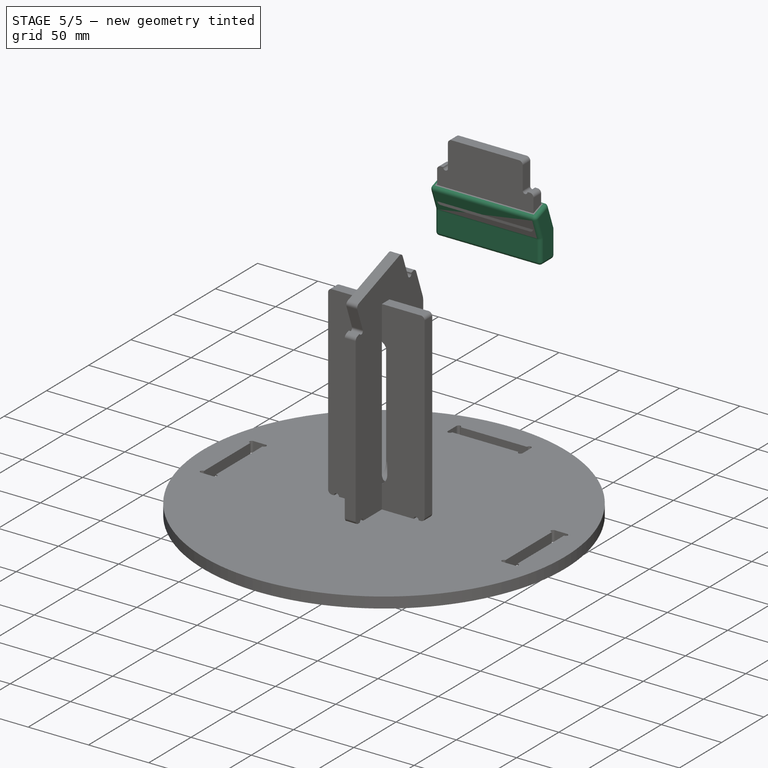
[diagram: stage 5 of 5 — iso view after this stage's code; geometry added in this stage tinted green]
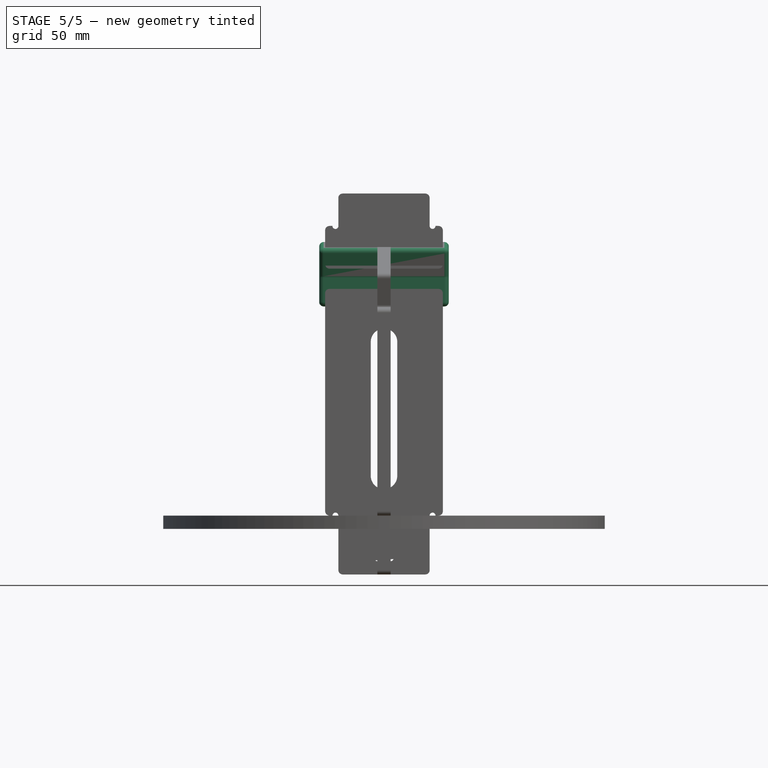
[diagram: stage 5 of 5 — front view after this stage's code; geometry added in this stage tinted green]
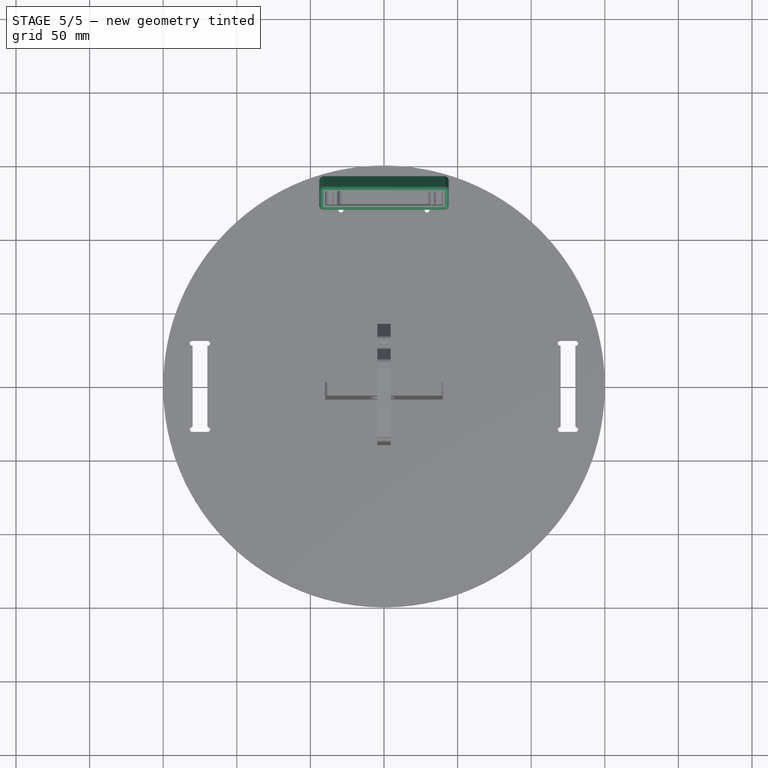
[diagram: stage 5 of 5 — top view after this stage's code; geometry added in this stage tinted green]
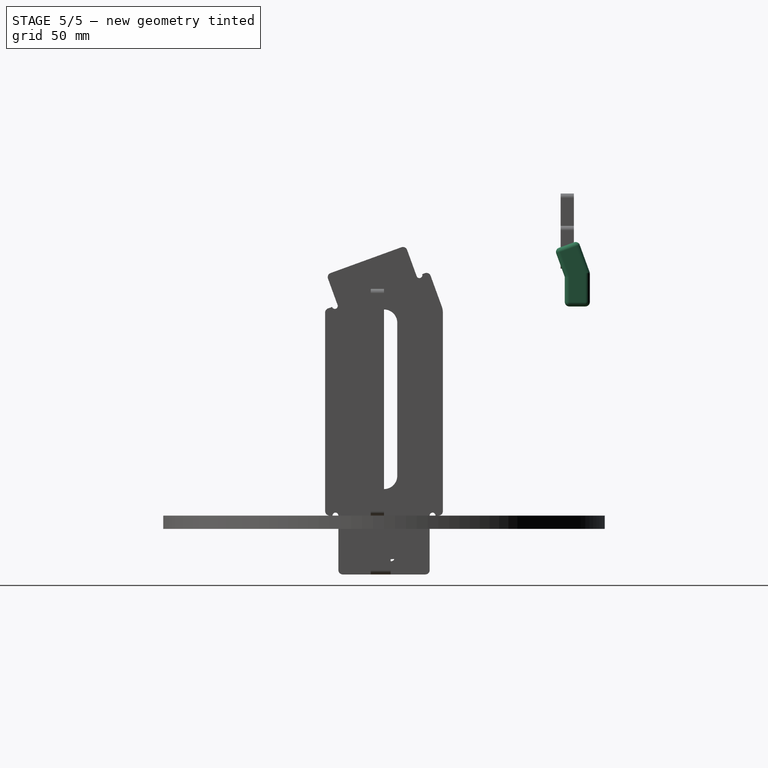
[diagram: stage 5 of 5 — right view after this stage's code; geometry added in this stage tinted green]
FEATURE [PartDesign::Body] Body010  label="structureback_part_02"
  Group = -> [Sketch006,Pad007,Fillet005]
  Origin = -> Origin010
  Placement = pos=(0,-62.7003,-32.3986) rot=(1,0,0;0.349066rad)
  Tip = -> Fillet005
FEATURE [Sketcher::SketchObject] Sketch007
  MapMode = 5
  Placement = pos=(0,0,0) rot=(0.57735,0.57735,0.57735;2.0944rad)
  Support = -> [YZ_Plane011]
  expr: Constraints[14] = Spreadsheet.connector_side * 2
  expr: Constraints[11] = Spreadsheet.angle
  expr: Constraints[8] = Spreadsheet.board_thickness + Spreadsheet.connector_padding * 2
  sketch-geometry (6):
    g0: LineSegment StartX=122.825 StartY=151.071 StartZ=0 EndX=139.825 EndY=151.071 EndZ=0
    g1: LineSegment StartX=139.825 StartY=151.071 StartZ=0 EndX=139.825 EndY=174.069 EndZ=0
    g2: LineSegment StartX=139.825 StartY=174.069 StartZ=0 EndX=131.96 EndY=195.679 EndZ=0
    g3: LineSegment StartX=131.96 StartY=195.679 StartZ=0 EndX=115.985 EndY=189.865 EndZ=0
    g4: LineSegment StartX=115.985 StartY=189.865 StartZ=0 EndX=122.825 EndY=171.071 EndZ=0
    g5: LineSegment StartX=122.825 StartY=171.071 StartZ=0 EndX=122.825 EndY=151.071 EndZ=0
  constraints (16):
    c: Horizontal(g0)
    c: Coincident(g0,g1)
    c: Coincident(g1,g2)
    c: Coincident(g2,g3)
    c: Coincident(g3,g4)
    c: Coincident(g4,g5)
    c: Coincident(g5,g0)
    c: Vertical(g5)
    c: DistanceX(g0,g0) = 17
    c: Equal(g0,g3)
    c: Vertical(g1)
    c: Angle(g4,g5) = 2.79253
    c: Perpendicular(g4,g3)
    c: Perpendicular(g3,g2)
    c: DistanceY(g5,g5) = 20
    c: Equal(g5,g4)
FEATURE [PartDesign::Pad] Pad008
  Direction = (1,1,1)
  Length = 88
  Length2 = 100
  Midplane = true
  Placement = pos=(0,0,0) rot=(0.57735,0.57735,0.57735;2.0944rad)
  Profile = -> Sketch007
  Type = 0
  expr: Length = Spreadsheet.structure_width + Spreadsheet.connector_padding * 2
FEATURE [Sketcher::SketchObject] Sketch008
  MapMode = 5
  Placement = pos=(-5.69e-14,-47.4538,130.378) rot=(0.171088,0.171088,-0.970288;1.60095rad)
  Support = -> [Pad008]
FEATURE [Sketcher::SketchObject] Sketch009
  ExternalGeometry = -> [Pad008]
  MapMode = 5
  Placement = pos=(-5.69e-14,-47.4538,130.378) rot=(0.171088,0.171088,-0.970288;1.60095rad)
  Support = -> [Pad008]
  expr: Constraints[8] = Spreadsheet.structure_width
  expr: Constraints[7] = Spreadsheet.board_thickness
  sketch-geometry (8):
    g0: LineSegment StartX=-186.928 StartY=40 StartZ=0 EndX=-177.928 EndY=40 EndZ=0
    g1: LineSegment StartX=-177.928 StartY=40 StartZ=0 EndX=-177.928 EndY=-40 EndZ=0
    g2: LineSegment StartX=-177.928 StartY=-40 StartZ=0 EndX=-186.928 EndY=-40 EndZ=0
    g3: LineSegment StartX=-186.928 StartY=-40 StartZ=0 EndX=-186.928 EndY=40 EndZ=0
    g4: GeomPoint X=-182.428 Y=44 Z=0
    g5: LineSegment [constr] StartX=-182.428 StartY=44 StartZ=0 EndX=-190.928 EndY=44 EndZ=0
    g6: LineSegment [constr] StartX=-182.428 StartY=44 StartZ=0 EndX=-173.928 EndY=44 EndZ=0
    g7: LineSegment [constr] StartX=-182.428 StartY=44 StartZ=0 EndX=-182.428 EndY=28.0443 EndZ=0
  constraints (18):
    c: Coincident(g0,g1)
    c: Coincident(g1,g2)
    c: Coincident(g2,g3)
    c: Coincident(g3,g0)
    c: Horizontal(g0)
    c: Horizontal(g2)
    c: Vertical(g1)
    c: DistanceX(g0,g0) = 9
    c: DistanceY(g3,g3) = 80
    c: Symmetric(g2,g0,g-1)
    c: PointOnObject(g4,g-3)
    c: Coincident(g5,g4)
    c: Coincident(g5,g-3)
    c: Coincident(g6,g4)
    c: Coincident(g6,g-3)
    c: Equal(g5,g6)
    c: Coincident(g7,g4)
    c: Symmetric(g0,g0,g7)
FEATURE [PartDesign::Pocket] Pocket
  BaseFeature = -> Pad008
  Length = 15
  Length2 = 100
  Placement = pos=(0,0,0) rot=(0.57735,0.57735,0.57735;2.0944rad)
  Profile = -> Sketch009
  Type = 0
  expr: Length = Spreadsheet.connector_side * 3 / 2
FEATURE [Sketcher::SketchObject] Sketch010
  MapMode = 5
  Placement = pos=(-4.23e-14,6.65e-14,151.071) rot=(0.707107,0.707107,0;3.14159rad)
  Support = -> [Pocket]
FEATURE [Sketcher::SketchObject] Sketch011
  ExternalGeometry = -> [Pocket]
  MapMode = 5
  Placement = pos=(-4.23e-14,6.65e-14,151.071) rot=(0.707107,0.707107,0;3.14159rad)
  Support = -> [Pocket]
  expr: Constraints[8] = Spreadsheet.structure_width
  expr: Constraints[7] = Spreadsheet.board_thickness
  sketch-geometry (7):
    g0: LineSegment StartX=126.825 StartY=40 StartZ=0 EndX=135.825 EndY=40 EndZ=0
    g1: LineSegment StartX=135.825 StartY=40 StartZ=0 EndX=135.825 EndY=-40 EndZ=0
    g2: LineSegment StartX=135.825 StartY=-40 StartZ=0 EndX=126.825 EndY=-40 EndZ=0
    g3: LineSegment StartX=126.825 StartY=-40 StartZ=0 EndX=126.825 EndY=40 EndZ=0
    g4: LineSegment [constr] StartX=131.325 StartY=44 StartZ=0 EndX=131.325 EndY=27.0699 EndZ=0
    g5: LineSegment [constr] StartX=122.825 StartY=44 StartZ=0 EndX=131.325 EndY=44 EndZ=0
    g6: LineSegment [constr] StartX=131.325 StartY=44 StartZ=0 EndX=139.825 EndY=44 EndZ=0
  constraints (17):
    c: Coincident(g0,g1)
    c: Coincident(g1,g2)
    c: Coincident(g2,g3)
    c: Coincident(g3,g0)
    c: Horizontal(g0)
    c: Horizontal(g2)
    c: Vertical(g1)
    c: DistanceX(g0,g0) = 9
    c: DistanceY(g3,g3) = 80
    c: Symmetric(g0,g2,g-1)
    c: PointOnObject(g4,g-3)
    c: Coincident(g5,g-3)
    c: Coincident(g5,g4)
    c: Coincident(g6,g4)
    c: Coincident(g6,g-3)
    c: Equal(g5,g6)
    c: Symmetric(g0,g0,g4)
FEATURE [PartDesign::Pocket] Pocket001
  BaseFeature = -> Pocket
  Length = 15
  Length2 = 100
  Placement = pos=(0,0,0) rot=(0.57735,0.57735,0.57735;2.0944rad)
  Profile = -> Sketch011
  Type = 0
  expr: Length = Spreadsheet.connector_side * 3 / 2
FEATURE [PartDesign::Fillet] Fillet006
  Base = -> Pocket001 [Edge20,Edge9,Edge29,Edge18,Edge30,Edge14,Edge2,Edge1,Edge4,Edge3,Edge13,Edge12,Edge15,Edge10,Edge19,Edge11,Edge17,Edge16]
  BaseFeature = -> Pocket001
  Placement = pos=(0,0,0) rot=(0.57735,0.57735,0.57735;2.0944rad)
  Radius = 3
  SupportTransform = true
  expr: Radius = Spreadsheet.filet_sm
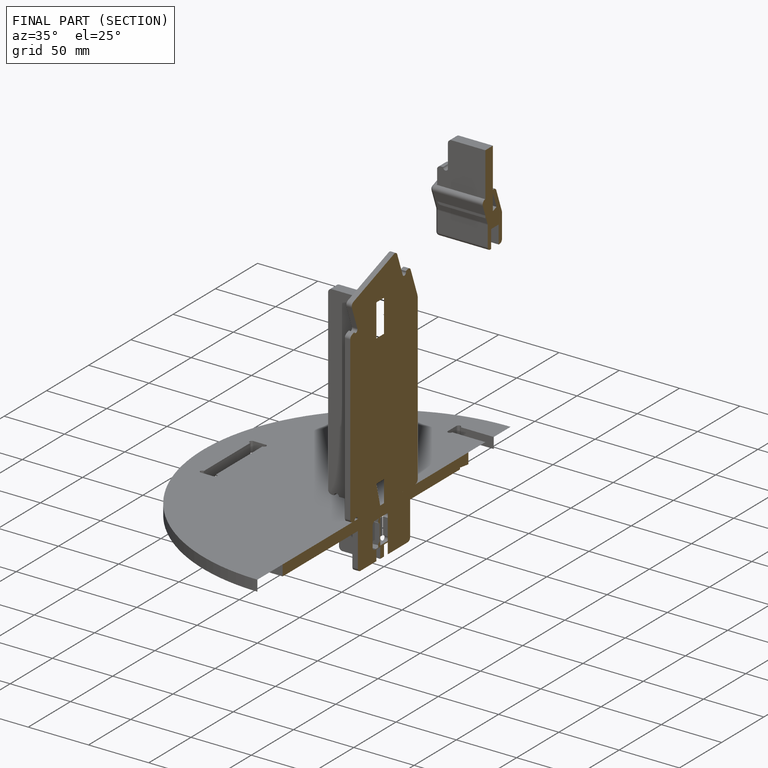
[diagram: finished part — half-section view (interior)]
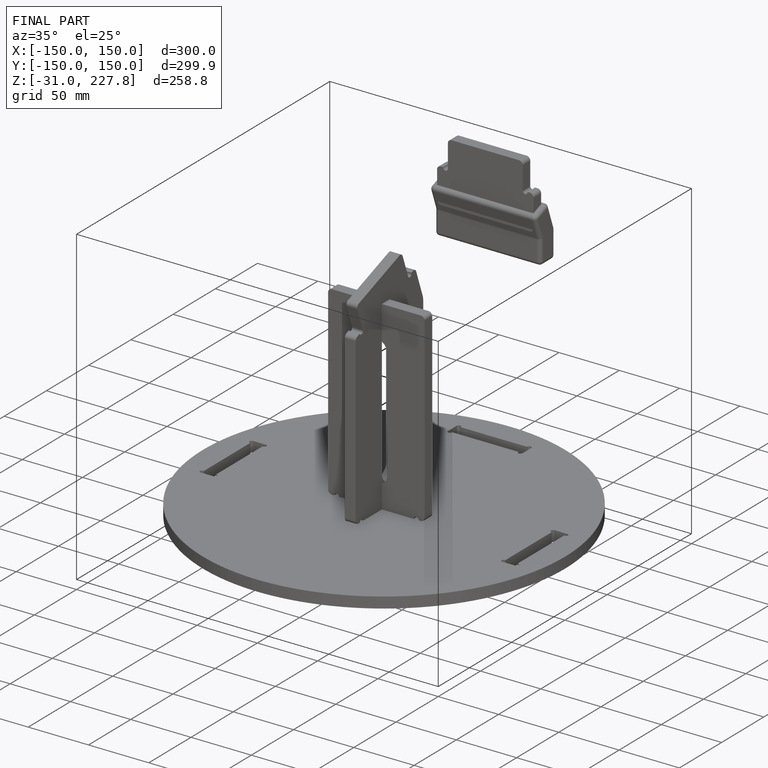
[diagram: finished part — iso view with bounding-box wireframe]
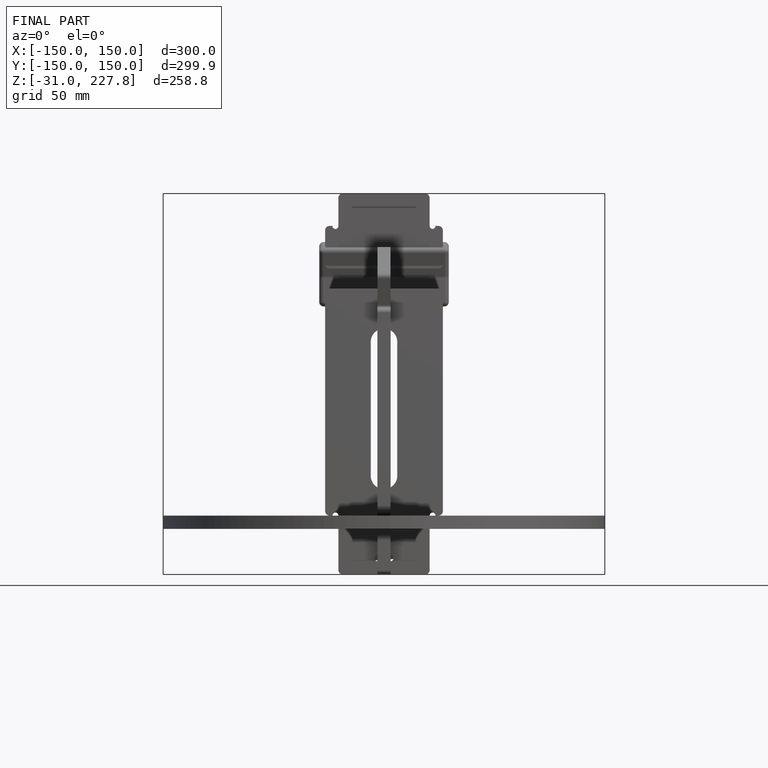
[diagram: finished part — front view with bounding-box wireframe]
